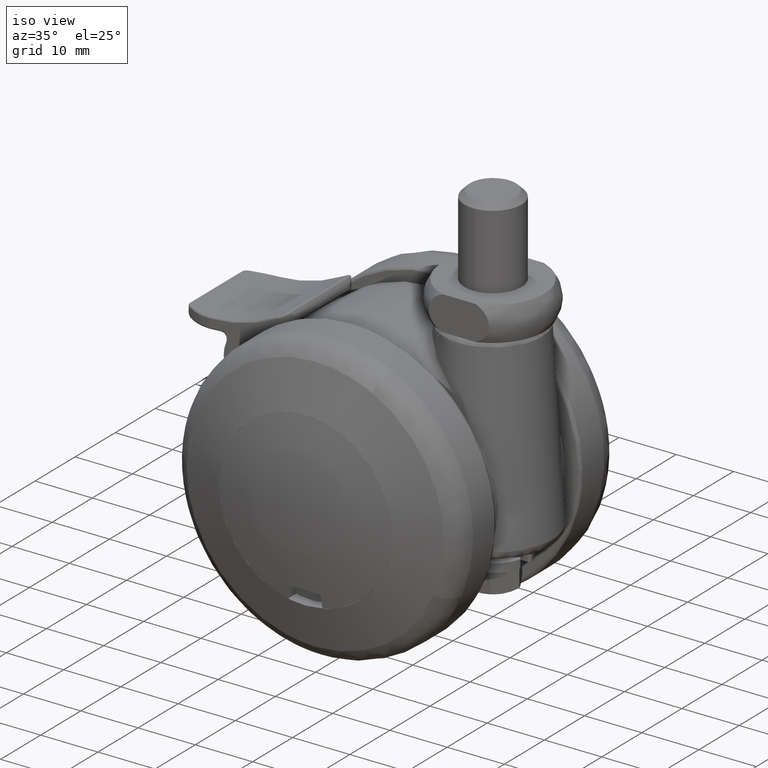
[diagram: clean part render]
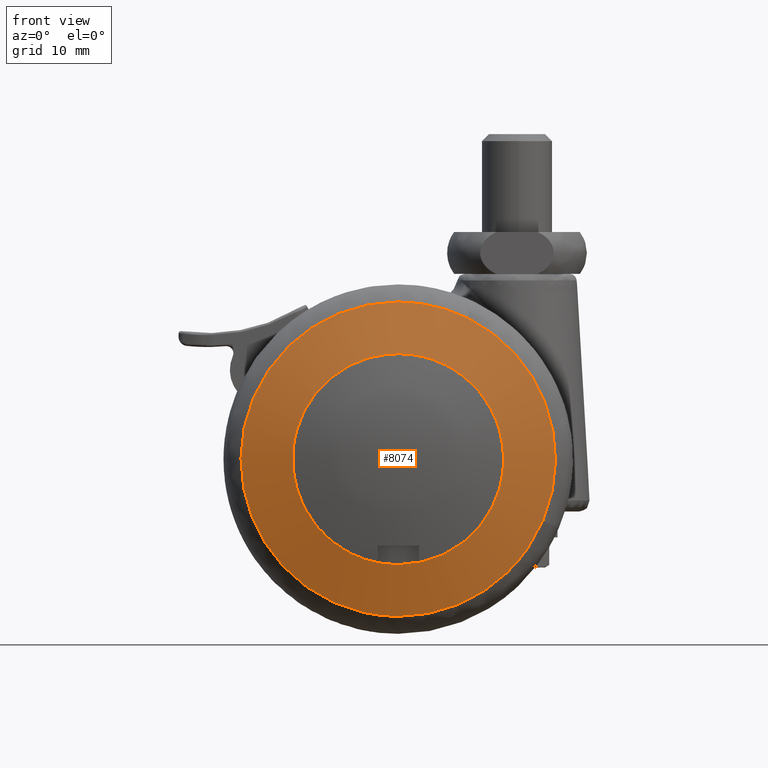
[diagram: tour spotlight — one face highlighted and labeled with its STEP entity id]
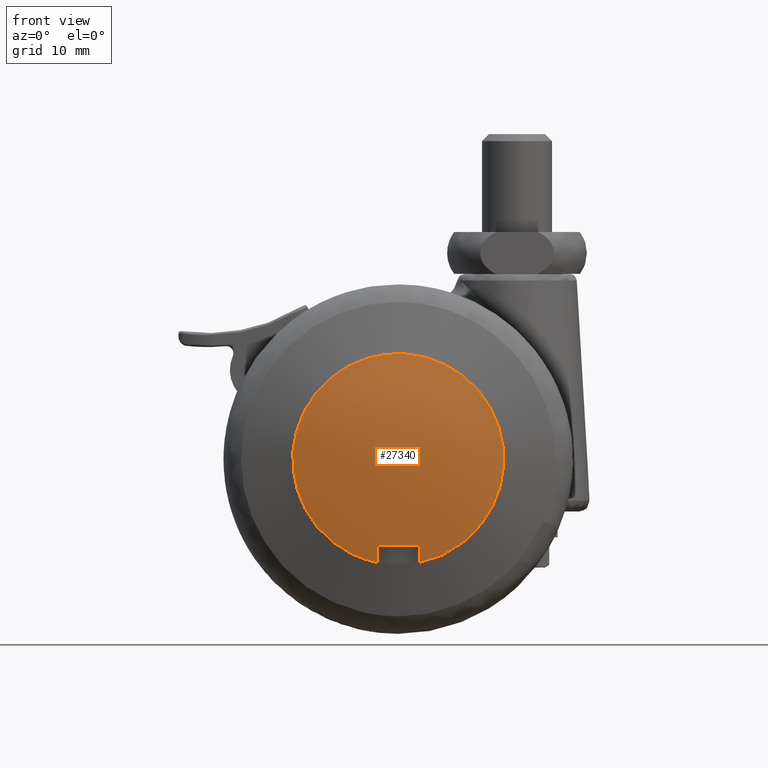
[diagram: tour spotlight — one face highlighted and labeled with its STEP entity id]
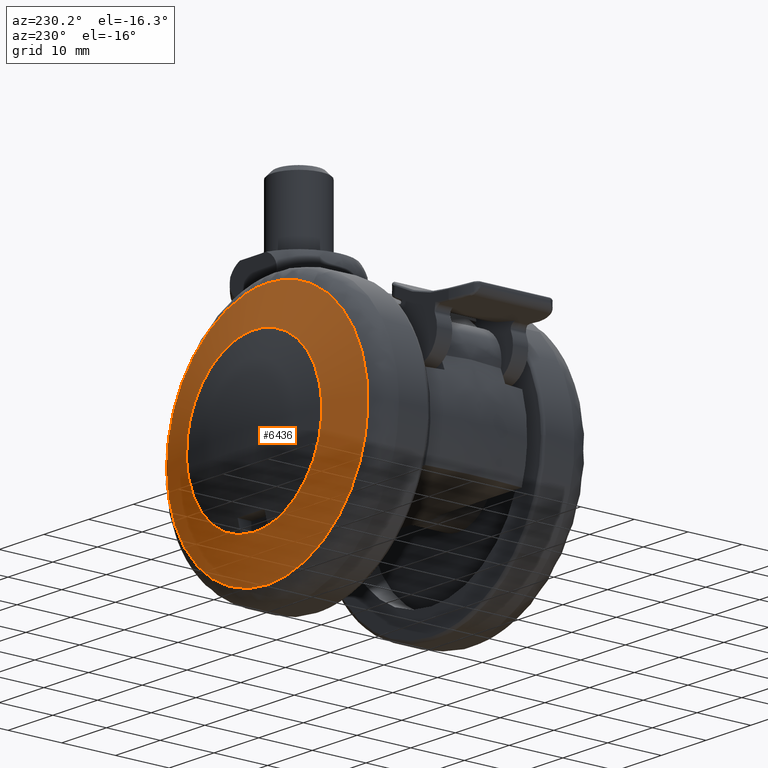
[diagram: tour spotlight — one face highlighted and labeled with its STEP entity id]
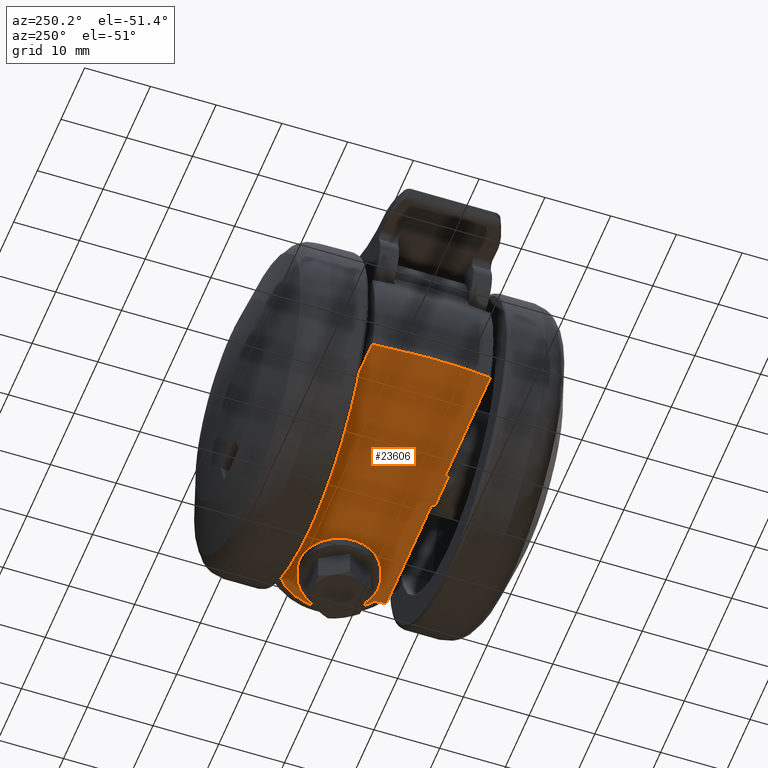
[diagram: tour spotlight — one face highlighted and labeled with its STEP entity id]
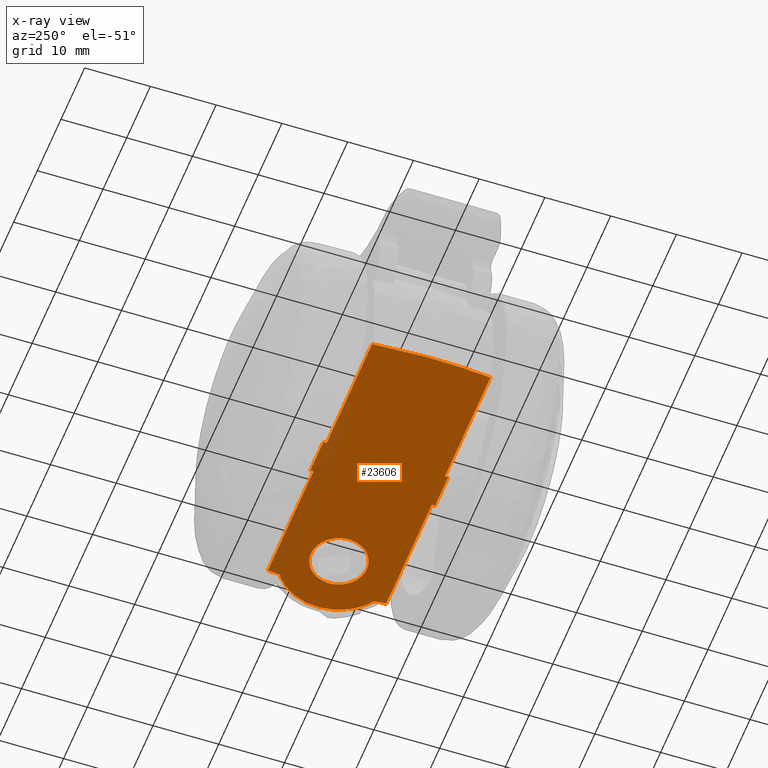
[diagram: x-ray of the same camera — body ghosted, this tour face saturated]
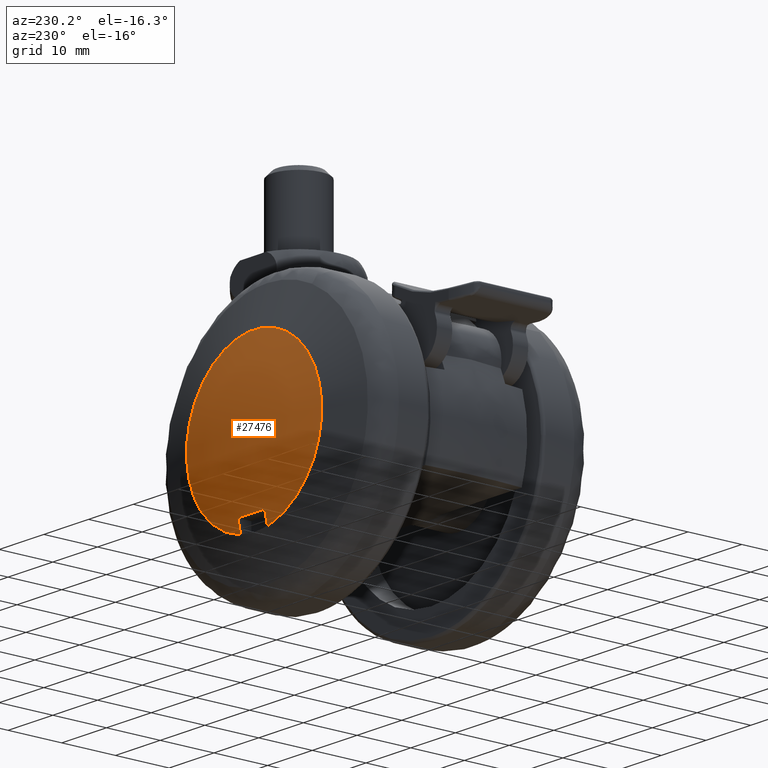
[diagram: tour spotlight — one face highlighted and labeled with its STEP entity id]
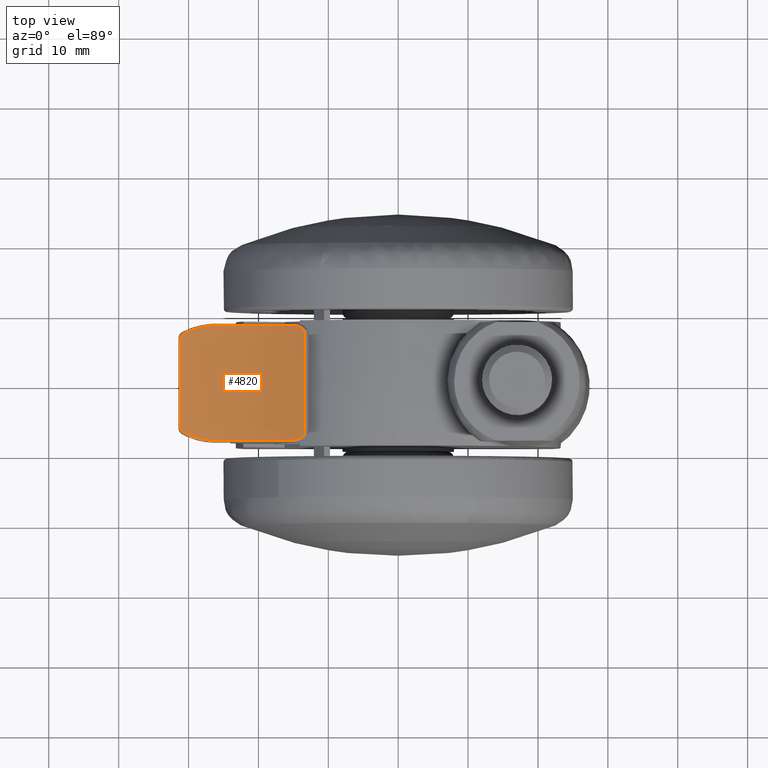
[diagram: tour spotlight — one face highlighted and labeled with its STEP entity id]
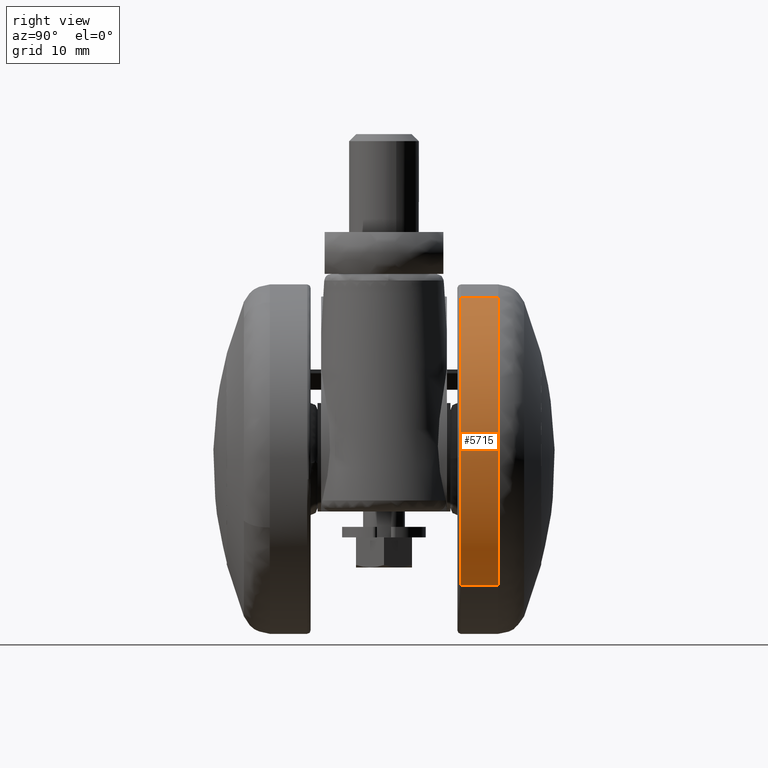
[diagram: tour spotlight — one face highlighted and labeled with its STEP entity id]
A machine part: a face-by-face anatomy tour. The part has 211 B-rep faces; the first image is the clean iso view, then the 7 largest visible faces are spotlighted one at a time (largest first), each with its STEP entity span.

Face 1 — front view, entity #8074. In plain terms, the highlighted face is a freeform B-spline surface patch.
Definition (entity closure, byte-faithful):
#7129=CARTESIAN_POINT('',(14.994447450915599,-22.500000000000000,-1.782297853524828));
#7130=VERTEX_POINT('',#7129);
#7136=CARTESIAN_POINT('',(0.0,-22.500000000000000,15.100001765886200));
#7137=VERTEX_POINT('',#7136);
#7138=CARTESIAN_POINT('',(14.994447450915592,-22.500000000000000,-1.782297853524827));
#7139=CARTESIAN_POINT('',(15.100001765886198,-22.499999999999993,-0.894274586535466));
#7140=CARTESIAN_POINT('',(15.100001765886200,-22.500000000000000,0.0));
#7141=CARTESIAN_POINT('',(15.100001765886196,-22.500000000000004,15.100001765886196));
#7142=CARTESIAN_POINT('',(0.0,-22.500000000000000,15.100001765886200));
#7150=(BOUNDED_CURVE()B_SPLINE_CURVE(2,(#7138,#7139,#7140,#7141,#7142),.UNSPECIFIED.,.F.,.U.)B_SPLINE_CURVE_WITH_KNOTS((3,2,3),(0.229562690439763,0.250000000000000,0.500000000000000),.UNSPECIFIED.)CURVE()GEOMETRIC_REPRESENTATION_ITEM()RATIONAL_B_SPLINE_CURVE((0.956027179368477,0.976056202476061,1.0,0.707106781186547,1.0))REPRESENTATION_ITEM(''));
#7151=EDGE_CURVE('',#7130,#7137,#7150,.T.);
#7153=CARTESIAN_POINT('',(-15.071838267498981,-22.500000000000000,0.921808675963950));
#7154=VERTEX_POINT('',#7153);
#7155=CARTESIAN_POINT('',(0.0,-22.500000000000000,15.100001765886200));
#7156=CARTESIAN_POINT('',(-14.204686265115358,-22.500000000000000,15.100001765886205));
#7157=CARTESIAN_POINT('',(-15.071838267498981,-22.500000000000004,0.921808675963950));
#7165=(BOUNDED_CURVE()B_SPLINE_CURVE(2,(#7155,#7156,#7157),.UNSPECIFIED.,.F.,.U.)B_SPLINE_CURVE_WITH_KNOTS((3,3),(0.500000000000000,0.739333241029301),.UNSPECIFIED.)CURVE()GEOMETRIC_REPRESENTATION_ITEM()RATIONAL_B_SPLINE_CURVE((1.0,0.719603666663489,0.976072639168253))REPRESENTATION_ITEM(''));
#7166=EDGE_CURVE('',#7137,#7154,#7165,.T.);
#7240=CARTESIAN_POINT('',(0.0,-22.500000000000000,-15.100001765886200));
#7241=VERTEX_POINT('',#7240);
#7242=CARTESIAN_POINT('',(-15.071838267498981,-22.500000000000004,0.921808675963950));
#7243=CARTESIAN_POINT('',(-15.100001765886201,-22.500000000000004,0.461334569689428));
#7244=CARTESIAN_POINT('',(-15.100001765886200,-22.500000000000000,0.0));
#7245=CARTESIAN_POINT('',(-15.100001765886196,-22.500000000000004,-15.100001765886196));
#7246=CARTESIAN_POINT('',(0.0,-22.500000000000000,-15.100001765886200));
#7254=(BOUNDED_CURVE()B_SPLINE_CURVE(2,(#7242,#7243,#7244,#7245,#7246),.UNSPECIFIED.,.F.,.U.)B_SPLINE_CURVE_WITH_KNOTS((3,2,3),(0.739333241029301,0.750000000000000,1.0),.UNSPECIFIED.)CURVE()GEOMETRIC_REPRESENTATION_ITEM()RATIONAL_B_SPLINE_CURVE((0.976072639168253,0.987503114523059,1.0,0.707106781186547,1.0))REPRESENTATION_ITEM(''));
#7255=EDGE_CURVE('',#7154,#7241,#7254,.T.);
#7257=CARTESIAN_POINT('',(0.0,-22.500000000000000,-15.100001765886200));
#7258=CARTESIAN_POINT('',(13.411454245719320,-22.499999999999996,-15.100001765886200));
#7259=CARTESIAN_POINT('',(14.994447450915592,-22.500000000000000,-1.782297853524827));
#7267=(BOUNDED_CURVE()B_SPLINE_CURVE(2,(#7257,#7258,#7259),.UNSPECIFIED.,.F.,.U.)B_SPLINE_CURVE_WITH_KNOTS((3,3),(0.0,0.229562690439763),.UNSPECIFIED.)CURVE()GEOMETRIC_REPRESENTATION_ITEM()RATIONAL_B_SPLINE_CURVE((1.0,0.731050578710486,0.956027179368477))REPRESENTATION_ITEM(''));
#7268=EDGE_CURVE('',#7241,#7130,#7267,.T.);
#7709=CARTESIAN_POINT('',(9.975672701062146,-20.052650238824459,20.167695819967630));
#7710=VERTEX_POINT('',#7709);
#7711=CARTESIAN_POINT('',(0.0,-20.052650239280950,22.500000010548298));
#7712=VERTEX_POINT('',#7711);
#7713=CARTESIAN_POINT('',(9.975672701062146,-20.052650238824455,20.167695819967633));
#7714=CARTESIAN_POINT('',(5.260481765086011,-20.052650239280950,22.500000010548298));
#7715=CARTESIAN_POINT('',(0.0,-20.052650239280950,22.500000010548298));
#7723=(BOUNDED_CURVE()B_SPLINE_CURVE(2,(#7713,#7714,#7715),.UNSPECIFIED.,.F.,.U.)B_SPLINE_CURVE_WITH_KNOTS((3,3),(0.424637790835624,0.500000000000000),.UNSPECIFIED.)CURVE()GEOMETRIC_REPRESENTATION_ITEM()RATIONAL_B_SPLINE_CURVE((0.876646594193143,0.911707679923813,1.0))REPRESENTATION_ITEM(''));
#7724=EDGE_CURVE('',#7710,#7712,#7723,.T.);
#7744=CARTESIAN_POINT('',(20.705216575638211,-20.052650239191589,-8.805907508061402));
#7745=VERTEX_POINT('',#7744);
#7759=CARTESIAN_POINT('',(0.0,-20.052650239280950,-22.500000010548298));
#7760=VERTEX_POINT('',#7759);
#7761=CARTESIAN_POINT('',(0.0,-20.052650239280950,-22.500000010548298));
#7762=CARTESIAN_POINT('',(14.881132990308913,-20.052650239280954,-22.500000010548291));
#7763=CARTESIAN_POINT('',(20.705216575638211,-20.052650239191589,-8.805907508061402));
#7771=(BOUNDED_CURVE()B_SPLINE_CURVE(2,(#7761,#7762,#7763),.UNSPECIFIED.,.F.,.U.)B_SPLINE_CURVE_WITH_KNOTS((3,3),(0.0,0.183550134662864),.UNSPECIFIED.)CURVE()GEOMETRIC_REPRESENTATION_ITEM()RATIONAL_B_SPLINE_CURVE((1.0,0.784957640979804,0.885683713610624))REPRESENTATION_ITEM(''));
#7772=EDGE_CURVE('',#7760,#7745,#7771,.T.);
#7774=CARTESIAN_POINT('',(0.0,-20.052650239280950,22.500000010548298));
#7775=CARTESIAN_POINT('',(-22.500000010548291,-20.052650239280958,22.500000010548291));
#7776=CARTESIAN_POINT('',(-22.500000010548298,-20.052650239280950,0.0));
#7777=CARTESIAN_POINT('',(-22.500000010548291,-20.052650239280958,-22.500000010548291));
#7778=CARTESIAN_POINT('',(0.0,-20.052650239280950,-22.500000010548298));
#7786=(BOUNDED_CURVE()B_SPLINE_CURVE(2,(#7774,#7775,#7776,#7777,#7778),.UNSPECIFIED.,.F.,.U.)B_SPLINE_CURVE_WITH_KNOTS((3,2,3),(0.500000000000000,0.750000000000000,1.0),.UNSPECIFIED.)CURVE()GEOMETRIC_REPRESENTATION_ITEM()RATIONAL_B_SPLINE_CURVE((1.0,0.707106781186548,1.0,0.707106781186548,1.0))REPRESENTATION_ITEM(''));
#7787=EDGE_CURVE('',#7712,#7760,#7786,.T.);
#7809=CARTESIAN_POINT('',(20.705216575638211,-20.052650239191589,-8.805907508061402));
#7810=CARTESIAN_POINT('',(22.500000010548298,-20.052650239280947,-4.585856400655935));
#7811=CARTESIAN_POINT('',(22.500000010548298,-20.052650239280950,0.0));
#7812=CARTESIAN_POINT('',(22.500000010548295,-20.052650239280947,13.972709978153336));
#7813=CARTESIAN_POINT('',(9.975672701062145,-20.052650238824452,20.167695819967630));
#7821=(BOUNDED_CURVE()B_SPLINE_CURVE(2,(#7809,#7810,#7811,#7812,#7813),.UNSPECIFIED.,.F.,.U.)B_SPLINE_CURVE_WITH_KNOTS((3,2,3),(0.183550134662864,0.250000000000000,0.424637790835624),.UNSPECIFIED.)CURVE()GEOMETRIC_REPRESENTATION_ITEM()RATIONAL_B_SPLINE_CURVE((0.885683713610624,0.922149140206744,1.0,0.795399101262735,0.876646594193143))REPRESENTATION_ITEM(''));
#7822=EDGE_CURVE('',#7745,#7710,#7821,.T.);
#8038=CARTESIAN_POINT('',(-23.529031152138892,-14.358802987606852,-23.529032246446722));
#8039=CARTESIAN_POINT('',(-12.279879532432092,-19.174364121991974,-24.559760207110013));
#8040=CARTESIAN_POINT('',(12.279867601254047,-19.174364121991953,-24.559760207110013));
#8041=CARTESIAN_POINT('',(23.529010210098853,-14.358811952515833,-23.529034165305625));
#8042=CARTESIAN_POINT('',(-24.559759164940136,-19.174364589546670,-12.279880153592970));
#8043=CARTESIAN_POINT('',(-12.842464883672800,-24.431162000000089,-12.842465480960909));
#8044=CARTESIAN_POINT('',(12.842452405884670,-24.431162000000079,-12.842465480960909));
#8045=CARTESIAN_POINT('',(24.559737393240539,-19.174374357104799,-12.279881198922373));
#8046=CARTESIAN_POINT('',(-24.559759164940136,-19.174364589546670,12.279879656306047));
#8047=CARTESIAN_POINT('',(-12.842464883672800,-24.431162000000089,12.842464960891490));
#8048=CARTESIAN_POINT('',(12.842452405884670,-24.431162000000079,12.842464960891490));
#8049=CARTESIAN_POINT('',(24.559737393240539,-19.174374357104799,12.279880701635408));
#8050=CARTESIAN_POINT('',(-23.529031232116207,-14.358803361260954,23.529031373590627));
#8051=CARTESIAN_POINT('',(-12.279879576001029,-19.174364529100203,24.559759299674045));
#8052=CARTESIAN_POINT('',(12.279867644822941,-19.174364529100181,24.559759299674045));
#8053=CARTESIAN_POINT('',(23.529010290076094,-14.358812326170000,23.529033292449469));
#8061=(BOUNDED_SURFACE()B_SPLINE_SURFACE(2,2,((#8038,#8042,#8046,#8050),(#8039,#8043,#8047,#8051),(#8040,#8044,#8048,#8052),(#8041,#8045,#8049,#8053)),.UNSPECIFIED.,.F.,.F.,.U.)B_SPLINE_SURFACE_WITH_KNOTS((3,1,3),(3,1,3),(9.826574003028870,34.408243677051843,58.989889467430118),(9.826572859764099,34.408243677051850,58.989913498878479),.UNSPECIFIED.)GEOMETRIC_REPRESENTATION_ITEM()RATIONAL_B_SPLINE_SURFACE(((1.091627173310567,1.045813584524547,1.045813584524547,1.091627169600027),(1.045813588786020,1.0,1.0,1.045813585075480),(1.045813588786020,1.0,1.0,1.045813585075480),(1.091627084285301,1.045813495499281,1.045813495499281,1.091627080574761)))REPRESENTATION_ITEM('')SURFACE());
#8062=ORIENTED_EDGE('',*,*,#7772,.T.);
#8063=ORIENTED_EDGE('',*,*,#7822,.T.);
#8064=ORIENTED_EDGE('',*,*,#7724,.T.);
#8065=ORIENTED_EDGE('',*,*,#7787,.T.);
#8066=EDGE_LOOP('',(#8062,#8063,#8064,#8065));
#8067=FACE_OUTER_BOUND('',#8066,.T.);
#8068=ORIENTED_EDGE('',*,*,#7166,.F.);
#8069=ORIENTED_EDGE('',*,*,#7151,.F.);
#8070=ORIENTED_EDGE('',*,*,#7268,.F.);
#8071=ORIENTED_EDGE('',*,*,#7255,.F.);
#8072=EDGE_LOOP('',(#8068,#8069,#8070,#8071));
#8073=FACE_BOUND('',#8072,.T.);
#8074=ADVANCED_FACE('',(#8067,#8073),#8061,.T.);

Face 2 — front view, entity #27340. In plain terms, the highlighted face is a freeform B-spline surface patch.
Definition (entity closure, byte-faithful):
#19263=CARTESIAN_POINT('',(3.0,-23.059141668414401,-12.400000000000000));
#19264=VERTEX_POINT('',#19263);
#19272=CARTESIAN_POINT('',(-3.0,-23.059141668414401,-12.400000000000000));
#19273=VERTEX_POINT('',#19272);
#19274=CARTESIAN_POINT('',(3.000000000000010,-23.059141668414359,-12.400000000000000));
#19275=CARTESIAN_POINT('',(2.168404E-014,-23.212651989781424,-12.399999999999997));
#19276=CARTESIAN_POINT('',(-2.999999999999988,-23.059141668414359,-12.400000000000000));
#19284=(BOUNDED_CURVE()B_SPLINE_CURVE(2,(#19274,#19275,#19276),.UNSPECIFIED.,.F.,.U.)CURVE()GEOMETRIC_REPRESENTATION_ITEM()QUASI_UNIFORM_CURVE()RATIONAL_B_SPLINE_CURVE((1.0,0.998693375438973,1.0))REPRESENTATION_ITEM(''));
#19285=EDGE_CURVE('',#19264,#19273,#19284,.T.);
#19307=CARTESIAN_POINT('',(3.0,-22.500000459189099,-14.798986451781060));
#19308=VERTEX_POINT('',#19307);
#19316=CARTESIAN_POINT('',(3.0,-22.500000459189099,-14.798986451781060));
#19317=CARTESIAN_POINT('',(3.000000000000000,-22.804229559589110,-13.605240478503202));
#19318=CARTESIAN_POINT('',(3.0,-23.059141668414359,-12.400000000000039));
#19326=(BOUNDED_CURVE()B_SPLINE_CURVE(2,(#19316,#19317,#19318),.UNSPECIFIED.,.F.,.U.)CURVE()GEOMETRIC_REPRESENTATION_ITEM()QUASI_UNIFORM_CURVE()RATIONAL_B_SPLINE_CURVE((1.0,0.999788763024764,1.0))REPRESENTATION_ITEM(''));
#19327=EDGE_CURVE('',#19308,#19264,#19326,.T.);
#19344=CARTESIAN_POINT('',(-3.0,-22.500000459189099,-14.798986451781060));
#19345=VERTEX_POINT('',#19344);
#19346=CARTESIAN_POINT('',(-3.0,-23.059141668414380,-12.399999999999970));
#19347=CARTESIAN_POINT('',(-3.000000000000000,-22.804229559589182,-13.605240478502909));
#19348=CARTESIAN_POINT('',(-3.0,-22.500000459189099,-14.798986451781060));
#19356=(BOUNDED_CURVE()B_SPLINE_CURVE(2,(#19346,#19347,#19348),.UNSPECIFIED.,.F.,.U.)CURVE()GEOMETRIC_REPRESENTATION_ITEM()QUASI_UNIFORM_CURVE()RATIONAL_B_SPLINE_CURVE((1.0,0.999788763024764,1.0))REPRESENTATION_ITEM(''));
#19357=EDGE_CURVE('',#19273,#19345,#19356,.T.);
#27287=CARTESIAN_POINT('',(3.0,-22.500000459189099,-14.798986451781060));
#27288=CARTESIAN_POINT('',(16.388397175553621,-22.500000459194354,-12.084936293175325));
#27289=CARTESIAN_POINT('',(15.024558153601300,-22.500000459194350,1.507531853412338));
#27290=CARTESIAN_POINT('',(13.660719131648975,-22.500000459194354,15.100000000000000));
#27291=CARTESIAN_POINT('',(0.0,-22.500000459194350,15.100000000000000));
#27292=CARTESIAN_POINT('',(-13.660719131648975,-22.500000459194354,15.100000000000000));
#27293=CARTESIAN_POINT('',(-15.024558153601300,-22.500000459194350,1.507531853412335));
#27294=CARTESIAN_POINT('',(-16.388397175553621,-22.500000459194354,-12.084936293175321));
#27295=CARTESIAN_POINT('',(-3.0,-22.500000459189099,-14.798986451781060));
#27303=(BOUNDED_CURVE()B_SPLINE_CURVE(2,(#27287,#27288,#27289,#27290,#27291,#27292,#27293,#27294,#27295),.UNSPECIFIED.,.F.,.U.)B_SPLINE_CURVE_WITH_KNOTS((3,2,2,2,3),(0.0,0.250000000000000,0.500000000000000,0.750000000000000,1.0),.UNSPECIFIED.)CURVE()GEOMETRIC_REPRESENTATION_ITEM()RATIONAL_B_SPLINE_CURVE((1.0,0.741564746527098,1.0,0.741564746527098,1.0,0.741564746527098,1.0,0.741564746527098,1.0))REPRESENTATION_ITEM(''));
#27304=EDGE_CURVE('',#19308,#19345,#27303,.T.);
#27310=CARTESIAN_POINT('',(-16.198589917248967,-19.954294156284675,-15.962063784127558));
#27311=CARTESIAN_POINT('',(-8.256086904831921,-22.190363238663451,-16.244219657206948));
#27312=CARTESIAN_POINT('',(8.256087790977423,-22.190363238663451,-16.244219657206948));
#27313=CARTESIAN_POINT('',(16.198591589845218,-19.954293685395211,-15.962063724708893));
#27314=CARTESIAN_POINT('',(-16.554758065455211,-22.290366900299951,-7.474721589583210));
#27315=CARTESIAN_POINT('',(-8.441211474114228,-24.622812310007529,-7.595215988247710));
#27316=CARTESIAN_POINT('',(8.441212380129592,-24.622812310007529,-7.595215988247710));
#27317=CARTESIAN_POINT('',(16.554759773343921,-22.290366409323866,-7.474721564219328));
#27318=CARTESIAN_POINT('',(-16.554758065455211,-21.911531790126006,8.909694483297576));
#27319=CARTESIAN_POINT('',(-8.441211474114228,-24.236478995300811,9.113493423780774));
#27320=CARTESIAN_POINT('',(8.441212380129592,-24.236478995300811,9.113493423780774));
#27321=CARTESIAN_POINT('',(16.554759773343921,-21.911531300728289,8.909694440398219));
#27322=CARTESIAN_POINT('',(-16.289722505968875,-19.858592066390685,16.200152373169551));
#27323=CARTESIAN_POINT('',(-8.303439642709920,-22.105622814339721,16.542568415309677));
#27324=CARTESIAN_POINT('',(8.303440533937904,-22.105622814339721,16.542568415309677));
#27325=CARTESIAN_POINT('',(16.289724187601472,-19.858591593244380,16.200152301068673));
#27333=(BOUNDED_SURFACE()B_SPLINE_SURFACE(2,2,((#27310,#27314,#27318,#27322),(#27311,#27315,#27319,#27323),(#27312,#27316,#27320,#27324),(#27313,#27317,#27321,#27325)),.UNSPECIFIED.,.F.,.F.,.U.)B_SPLINE_SURFACE_WITH_KNOTS((3,1,3),(3,1,3),(14.451984096574780,30.760225851330759,47.068469356489182),(13.402272643756870,30.760225851330748,45.691772995281219),.UNSPECIFIED.)GEOMETRIC_REPRESENTATION_ITEM()RATIONAL_B_SPLINE_SURFACE(((1.042215590028075,1.019792791986311,1.019792791986311,1.036384931790116),(1.022422798041765,1.0,1.0,1.016592139803806),(1.022422798041765,1.0,1.0,1.016592139803806),(1.042215594276891,1.019792796235126,1.019792796235126,1.036384936038931)))REPRESENTATION_ITEM('')SURFACE());
#27334=ORIENTED_EDGE('',*,*,#19357,.F.);
#27335=ORIENTED_EDGE('',*,*,#19285,.F.);
#27336=ORIENTED_EDGE('',*,*,#19327,.F.);
#27337=ORIENTED_EDGE('',*,*,#27304,.T.);
#27338=EDGE_LOOP('',(#27334,#27335,#27336,#27337));
#27339=FACE_OUTER_BOUND('',#27338,.T.);
#27340=ADVANCED_FACE('',(#27339),#27333,.T.);

Face 3 — auxiliary view, entity #6436. In plain terms, the highlighted face is a freeform B-spline surface patch.
Definition (entity closure, byte-faithful):
#5481=CARTESIAN_POINT('',(15.053454933973130,22.500000000000000,-1.184708634050328));
#5482=VERTEX_POINT('',#5481);
#5488=CARTESIAN_POINT('',(0.0,22.500000000000000,-15.100001765886191));
#5489=VERTEX_POINT('',#5488);
#5490=CARTESIAN_POINT('',(0.0,22.500000000000000,-15.100001765886191));
#5491=CARTESIAN_POINT('',(13.958320207464881,22.499999999999993,-15.100001765886198));
#5492=CARTESIAN_POINT('',(15.053454933973137,22.499999999999996,-1.184708634050328));
#5500=(BOUNDED_CURVE()B_SPLINE_CURVE(2,(#5490,#5491,#5492),.UNSPECIFIED.,.F.,.U.)B_SPLINE_CURVE_WITH_KNOTS((3,3),(0.0,0.236331571835349),.UNSPECIFIED.)CURVE()GEOMETRIC_REPRESENTATION_ITEM()RATIONAL_B_SPLINE_CURVE((1.0,0.723120340871607,0.969723922151605))REPRESENTATION_ITEM(''));
#5501=EDGE_CURVE('',#5489,#5482,#5500,.T.);
#5503=CARTESIAN_POINT('',(-15.053454933973130,22.500000000000000,1.184708634050346));
#5504=VERTEX_POINT('',#5503);
#5505=CARTESIAN_POINT('',(-15.053454933973137,22.499999999999996,1.184708634050346));
#5506=CARTESIAN_POINT('',(-15.100001765886198,22.499999999999996,0.593268722263173));
#5507=CARTESIAN_POINT('',(-15.100001765886200,22.500000000000000,8.266093E-015));
#5508=CARTESIAN_POINT('',(-15.100001765886196,22.500000000000004,-15.100001765886196));
#5509=CARTESIAN_POINT('',(0.0,22.500000000000000,-15.100001765886191));
#5517=(BOUNDED_CURVE()B_SPLINE_CURVE(2,(#5505,#5506,#5507,#5508,#5509),.UNSPECIFIED.,.F.,.U.)B_SPLINE_CURVE_WITH_KNOTS((3,2,3),(0.736331571835349,0.750000000000000,1.0),.UNSPECIFIED.)CURVE()GEOMETRIC_REPRESENTATION_ITEM()RATIONAL_B_SPLINE_CURVE((0.969723922151605,0.983986440314940,1.0,0.707106781186547,1.0))REPRESENTATION_ITEM(''));
#5518=EDGE_CURVE('',#5504,#5489,#5517,.T.);
#5598=CARTESIAN_POINT('',(0.0,22.500000000000000,15.100001765886210));
#5599=VERTEX_POINT('',#5598);
#5600=CARTESIAN_POINT('',(0.0,22.500000000000000,15.100001765886210));
#5601=CARTESIAN_POINT('',(-13.958320207464881,22.500000000000007,15.100001765886210));
#5602=CARTESIAN_POINT('',(-15.053454933973137,22.499999999999996,1.184708634050346));
#5610=(BOUNDED_CURVE()B_SPLINE_CURVE(2,(#5600,#5601,#5602),.UNSPECIFIED.,.F.,.U.)B_SPLINE_CURVE_WITH_KNOTS((3,3),(0.500000000000000,0.736331571835349),.UNSPECIFIED.)CURVE()GEOMETRIC_REPRESENTATION_ITEM()RATIONAL_B_SPLINE_CURVE((1.0,0.723120340871607,0.969723922151605))REPRESENTATION_ITEM(''));
#5611=EDGE_CURVE('',#5599,#5504,#5610,.T.);
#5613=CARTESIAN_POINT('',(15.053454933973137,22.499999999999996,-1.184708634050328));
#5614=CARTESIAN_POINT('',(15.100001765886198,22.500000000000007,-0.593268722263156));
#5615=CARTESIAN_POINT('',(15.100001765886200,22.500000000000000,8.266093E-015));
#5616=CARTESIAN_POINT('',(15.100001765886196,22.500000000000004,15.100001765886208));
#5617=CARTESIAN_POINT('',(0.0,22.500000000000000,15.100001765886210));
#5625=(BOUNDED_CURVE()B_SPLINE_CURVE(2,(#5613,#5614,#5615,#5616,#5617),.UNSPECIFIED.,.F.,.U.)B_SPLINE_CURVE_WITH_KNOTS((3,2,3),(0.236331571835349,0.250000000000000,0.500000000000000),.UNSPECIFIED.)CURVE()GEOMETRIC_REPRESENTATION_ITEM()RATIONAL_B_SPLINE_CURVE((0.969723922151605,0.983986440314940,1.0,0.707106781186547,1.0))REPRESENTATION_ITEM(''));
#5626=EDGE_CURVE('',#5482,#5599,#5625,.T.);
#6069=CARTESIAN_POINT('',(0.0,20.052650239280950,22.500000010548309));
#6070=VERTEX_POINT('',#6069);
#6071=CARTESIAN_POINT('',(-9.975672701379754,20.052650238567661,20.167695820518759));
#6072=VERTEX_POINT('',#6071);
#6073=CARTESIAN_POINT('',(0.0,20.052650239280950,22.500000010548309));
#6074=CARTESIAN_POINT('',(-5.260481765128469,20.052650239280947,22.500000010548309));
#6075=CARTESIAN_POINT('',(-9.975672701379754,20.052650238567665,20.167695820518762));
#6083=(BOUNDED_CURVE()B_SPLINE_CURVE(2,(#6073,#6074,#6075),.UNSPECIFIED.,.F.,.U.)B_SPLINE_CURVE_WITH_KNOTS((3,3),(0.500000000000000,0.575362209164931),.UNSPECIFIED.)CURVE()GEOMETRIC_REPRESENTATION_ITEM()RATIONAL_B_SPLINE_CURVE((1.0,0.911707679923163,0.876646594192627))REPRESENTATION_ITEM(''));
#6084=EDGE_CURVE('',#6070,#6072,#6083,.T.);
#6104=CARTESIAN_POINT('',(-20.705216576095939,20.052650238983858,-8.805907508297315));
#6105=VERTEX_POINT('',#6104);
#6119=CARTESIAN_POINT('',(0.0,20.052650239280950,-22.500000010548291));
#6120=VERTEX_POINT('',#6119);
#6121=CARTESIAN_POINT('',(-20.705216576095939,20.052650238983862,-8.805907508297315));
#6122=CARTESIAN_POINT('',(-14.881132990254363,20.052650239280958,-22.500000010548284));
#6123=CARTESIAN_POINT('',(0.0,20.052650239280950,-22.500000010548291));
#6131=(BOUNDED_CURVE()B_SPLINE_CURVE(2,(#6121,#6122,#6123),.UNSPECIFIED.,.F.,.U.)B_SPLINE_CURVE_WITH_KNOTS((3,3),(0.816449865337664,1.0),.UNSPECIFIED.)CURVE()GEOMETRIC_REPRESENTATION_ITEM()RATIONAL_B_SPLINE_CURVE((0.885683713610044,0.784957640980423,1.0))REPRESENTATION_ITEM(''));
#6132=EDGE_CURVE('',#6105,#6120,#6131,.T.);
#6134=CARTESIAN_POINT('',(0.0,20.052650239280950,-22.500000010548291));
#6135=CARTESIAN_POINT('',(22.500000010548291,20.052650239280958,-22.500000010548291));
#6136=CARTESIAN_POINT('',(22.500000010548298,20.052650239280950,7.366981E-015));
#6137=CARTESIAN_POINT('',(22.500000010548291,20.052650239280958,22.500000010548309));
#6138=CARTESIAN_POINT('',(0.0,20.052650239280950,22.500000010548309));
#6146=(BOUNDED_CURVE()B_SPLINE_CURVE(2,(#6134,#6135,#6136,#6137,#6138),.UNSPECIFIED.,.F.,.U.)B_SPLINE_CURVE_WITH_KNOTS((3,2,3),(0.0,0.250000000000000,0.500000000000000),.UNSPECIFIED.)CURVE()GEOMETRIC_REPRESENTATION_ITEM()RATIONAL_B_SPLINE_CURVE((1.0,0.707106781186548,1.0,0.707106781186548,1.0))REPRESENTATION_ITEM(''));
#6147=EDGE_CURVE('',#6120,#6070,#6146,.T.);
#6169=CARTESIAN_POINT('',(-9.975672701379754,20.052650238567665,20.167695820518766));
#6170=CARTESIAN_POINT('',(-22.500000010548298,20.052650239280954,13.972709978097443));
#6171=CARTESIAN_POINT('',(-22.500000010548298,20.052650239280950,7.366981E-015));
#6172=CARTESIAN_POINT('',(-22.500000010548298,20.052650239280954,-4.585856400695446));
#6173=CARTESIAN_POINT('',(-20.705216576095935,20.052650238983855,-8.805907508297317));
#6181=(BOUNDED_CURVE()B_SPLINE_CURVE(2,(#6169,#6170,#6171,#6172,#6173),.UNSPECIFIED.,.F.,.U.)B_SPLINE_CURVE_WITH_KNOTS((3,2,3),(0.575362209164932,0.750000000000000,0.816449865337664),.UNSPECIFIED.)CURVE()GEOMETRIC_REPRESENTATION_ITEM()RATIONAL_B_SPLINE_CURVE((0.876646594192626,0.795399101263386,1.0,0.922149140206125,0.885683713610045))REPRESENTATION_ITEM(''));
#6182=EDGE_CURVE('',#6072,#6105,#6181,.T.);
#6400=CARTESIAN_POINT('',(-23.529010204970035,14.358811954711376,23.529034165775567));
#6401=CARTESIAN_POINT('',(-12.279867598332043,19.174364121991953,24.559760207110013));
#6402=CARTESIAN_POINT('',(12.279879011348388,19.174364121991964,24.559760207110013));
#6403=CARTESIAN_POINT('',(23.529030237513808,14.358803379141486,23.529032330251205));
#6404=CARTESIAN_POINT('',(-24.559737387908541,19.174374359496937,12.279881199178382));
#6405=CARTESIAN_POINT('',(-12.842452402828799,24.431162000000079,12.842465480960909));
#6406=CARTESIAN_POINT('',(12.842464338716370,24.431162000000100,12.842465480960909));
#6407=CARTESIAN_POINT('',(24.559758214080414,19.174365016136321,12.279880199246820));
#6408=CARTESIAN_POINT('',(-24.559737387908541,19.174374359496937,-12.279880701891418));
#6409=CARTESIAN_POINT('',(-12.842452402828799,24.431162000000079,-12.842464960891480));
#6410=CARTESIAN_POINT('',(12.842464338716370,24.431162000000100,-12.842464960891480));
#6411=CARTESIAN_POINT('',(24.559758214080414,19.174365016136321,-12.279879701959896));
#6412=CARTESIAN_POINT('',(-23.529010284947297,14.358812328365572,-23.529033292919422));
#6413=CARTESIAN_POINT('',(-12.279867641900937,19.174364529100192,-24.559759299674052));
#6414=CARTESIAN_POINT('',(12.279879054917322,19.174364529100213,-24.559759299674052));
#6415=CARTESIAN_POINT('',(23.529030317491145,14.358803752795625,-23.529031457395142));
#6423=(BOUNDED_SURFACE()B_SPLINE_SURFACE(2,2,((#6400,#6404,#6408,#6412),(#6401,#6405,#6409,#6413),(#6402,#6406,#6410,#6414),(#6403,#6407,#6411,#6415)),.UNSPECIFIED.,.F.,.F.,.U.)B_SPLINE_SURFACE_WITH_KNOTS((3,1,3),(3,1,3),(9.826597892522813,34.408243677051850,58.989912307977683),(9.826572859764099,34.408243677051850,58.989913498878479),.UNSPECIFIED.)GEOMETRIC_REPRESENTATION_ITEM()RATIONAL_B_SPLINE_SURFACE(((1.091627084263498,1.045813495477478,1.045813495477478,1.091627080552958),(1.045813588786020,1.0,1.0,1.045813585075480),(1.045813588786020,1.0,1.0,1.045813585075480),(1.091627169422466,1.045813580636446,1.045813580636446,1.091627165711925)))REPRESENTATION_ITEM('')SURFACE());
#6424=ORIENTED_EDGE('',*,*,#6147,.F.);
#6425=ORIENTED_EDGE('',*,*,#6132,.F.);
#6426=ORIENTED_EDGE('',*,*,#6182,.F.);
#6427=ORIENTED_EDGE('',*,*,#6084,.F.);
#6428=EDGE_LOOP('',(#6424,#6425,#6426,#6427));
#6429=FACE_OUTER_BOUND('',#6428,.T.);
#6430=ORIENTED_EDGE('',*,*,#5611,.T.);
#6431=ORIENTED_EDGE('',*,*,#5518,.T.);
#6432=ORIENTED_EDGE('',*,*,#5501,.T.);
#6433=ORIENTED_EDGE('',*,*,#5626,.T.);
#6434=EDGE_LOOP('',(#6430,#6431,#6432,#6433));
#6435=FACE_BOUND('',#6434,.T.);
#6436=ADVANCED_FACE('',(#6429,#6435),#6423,.T.);

Face 4 — auxiliary view, entity #23606. An x-ray twin of the same camera follows (body ghosted, this face saturated) — the face is partly hidden behind the body. In plain terms, the highlighted face is a freeform B-spline surface patch.
Definition (entity closure, byte-faithful):
#10468=CARTESIAN_POINT('',(17.259453153174508,4.242073085331858,-7.500000000000000));
#10469=VERTEX_POINT('',#10468);
#10475=CARTESIAN_POINT('',(21.250000000000000,-1.136868E-013,-7.500000000000000));
#10476=VERTEX_POINT('',#10475);
#10477=CARTESIAN_POINT('',(21.250000000000000,-1.136868E-013,-7.500000000000000));
#10478=CARTESIAN_POINT('',(21.249999999999996,3.998003749073949,-7.500000000000002));
#10479=CARTESIAN_POINT('',(17.259453153174508,4.242073085331859,-7.500000000000000));
#10487=(BOUNDED_CURVE()B_SPLINE_CURVE(2,(#10477,#10478,#10479),.UNSPECIFIED.,.F.,.U.)B_SPLINE_CURVE_WITH_KNOTS((3,3),(0.500000000000000,0.739333089955675),.UNSPECIFIED.)CURVE()GEOMETRIC_REPRESENTATION_ITEM()RATIONAL_B_SPLINE_CURVE((1.0,0.719603843657251,0.976072315388140))REPRESENTATION_ITEM(''));
#10488=EDGE_CURVE('',#10476,#10469,#10487,.T.);
#10490=CARTESIAN_POINT('',(16.498354502587251,-4.220290487031250,-7.500000000000002));
#10491=VERTEX_POINT('',#10490);
#10492=CARTESIAN_POINT('',(16.498354502587244,-4.220290487031250,-7.500000000000003));
#10493=CARTESIAN_POINT('',(16.748297491356571,-4.250000000000114,-7.500000000000000));
#10494=CARTESIAN_POINT('',(17.0,-4.250000000000114,-7.500000000000000));
#10495=CARTESIAN_POINT('',(21.250000000000007,-4.250000000000115,-7.500000000000000));
#10496=CARTESIAN_POINT('',(21.250000000000000,-1.136868E-013,-7.500000000000000));
#10504=(BOUNDED_CURVE()B_SPLINE_CURVE(2,(#10492,#10493,#10494,#10495,#10496),.UNSPECIFIED.,.F.,.U.)B_SPLINE_CURVE_WITH_KNOTS((3,2,3),(0.229562473505911,0.250000000000000,0.500000000000000),.UNSPECIFIED.)CURVE()GEOMETRIC_REPRESENTATION_ITEM()RATIONAL_B_SPLINE_CURVE((0.956026754168808,0.976055948322244,1.0,0.707106781186548,1.0))REPRESENTATION_ITEM(''));
#10505=EDGE_CURVE('',#10491,#10476,#10504,.T.);
#10549=CARTESIAN_POINT('',(12.750000000000000,-1.136868E-013,-7.500000000000000));
#10550=VERTEX_POINT('',#10549);
#10551=CARTESIAN_POINT('',(12.750000000000000,-1.136868E-013,-7.500000000000000));
#10552=CARTESIAN_POINT('',(12.750000000000002,-3.774741735074500,-7.500000000000000));
#10553=CARTESIAN_POINT('',(16.498354502587251,-4.220290487031251,-7.500000000000002));
#10561=(BOUNDED_CURVE()B_SPLINE_CURVE(2,(#10551,#10552,#10553),.UNSPECIFIED.,.F.,.U.)B_SPLINE_CURVE_WITH_KNOTS((3,3),(0.0,0.229562473505911),.UNSPECIFIED.)CURVE()GEOMETRIC_REPRESENTATION_ITEM()RATIONAL_B_SPLINE_CURVE((1.0,0.731050832864303,0.956026754168808))REPRESENTATION_ITEM(''));
#10562=EDGE_CURVE('',#10550,#10491,#10561,.T.);
#10564=CARTESIAN_POINT('',(17.259453153174505,4.242073085331858,-7.499999999999999));
#10565=CARTESIAN_POINT('',(17.129847669692861,4.249999999999886,-7.500000000000000));
#10566=CARTESIAN_POINT('',(17.0,4.249999999999886,-7.500000000000000));
#10567=CARTESIAN_POINT('',(12.750000000000002,4.249999999999886,-7.500000000000000));
#10568=CARTESIAN_POINT('',(12.750000000000000,-1.136868E-013,-7.500000000000000));
#10576=(BOUNDED_CURVE()B_SPLINE_CURVE(2,(#10564,#10565,#10566,#10567,#10568),.UNSPECIFIED.,.F.,.U.)B_SPLINE_CURVE_WITH_KNOTS((3,2,3),(0.739333089955675,0.750000000000000,1.0),.UNSPECIFIED.)CURVE()GEOMETRIC_REPRESENTATION_ITEM()RATIONAL_B_SPLINE_CURVE((0.976072315388140,0.987502937529297,1.0,0.707106781186548,1.0))REPRESENTATION_ITEM(''));
#10577=EDGE_CURVE('',#10469,#10550,#10576,.T.);
#23034=CARTESIAN_POINT('',(22.160977493456350,7.262070286592310,-7.500000000000000));
#23035=VERTEX_POINT('',#23034);
#23088=CARTESIAN_POINT('',(22.160977493456301,-7.262070286592670,-7.500000000000000));
#23089=VERTEX_POINT('',#23088);
#23123=CARTESIAN_POINT('',(22.160977493456350,7.262070286592310,-7.500000000000000));
#23124=CARTESIAN_POINT('',(25.909172438300512,4.598318906060981,-7.500000000000001));
#23125=CARTESIAN_POINT('',(25.909172438300509,0.0,-7.500000000000000));
#23126=CARTESIAN_POINT('',(25.909172438300512,-4.598318906061142,-7.500000000000001));
#23127=CARTESIAN_POINT('',(22.160977493456301,-7.262070286592670,-7.500000000000000));
#23135=(BOUNDED_CURVE()B_SPLINE_CURVE(2,(#23123,#23124,#23125,#23126,#23127),.UNSPECIFIED.,.F.,.U.)B_SPLINE_CURVE_WITH_KNOTS((3,2,3),(0.0,0.500000000000000,1.0),.UNSPECIFIED.)CURVE()GEOMETRIC_REPRESENTATION_ITEM()RATIONAL_B_SPLINE_CURVE((1.0,0.888619179097431,1.0,0.888619179097431,1.0))REPRESENTATION_ITEM(''));
#23136=EDGE_CURVE('',#23035,#23089,#23135,.T.);
#23199=CARTESIAN_POINT('',(22.011238817712051,9.0,-7.500000000000000));
#23200=VERTEX_POINT('',#23199);
#23201=CARTESIAN_POINT('',(22.011238817712080,9.000000000000005,-7.500000000000000));
#23202=CARTESIAN_POINT('',(22.066486737791760,8.421296985102257,-7.500000000000000));
#23203=CARTESIAN_POINT('',(22.116399397279000,7.841987054193084,-7.500000000000000));
#23204=CARTESIAN_POINT('',(22.160977493456350,7.262070286592310,-7.500000000000000));
#23205=QUASI_UNIFORM_CURVE('',3,(#23201,#23202,#23203,#23204),.UNSPECIFIED.,.F.,.U.);
#23206=EDGE_CURVE('',#23200,#23035,#23205,.T.);
#23283=CARTESIAN_POINT('',(22.011238817712101,-9.0,-7.500000000000000));
#23284=VERTEX_POINT('',#23283);
#23298=CARTESIAN_POINT('',(22.160977493456301,-7.262070286592660,-7.500000000000000));
#23299=CARTESIAN_POINT('',(22.116344269595508,-7.842704210616157,-7.500000000000000));
#23300=CARTESIAN_POINT('',(22.066418580827438,-8.422010905928207,-7.500000000000000));
#23301=CARTESIAN_POINT('',(22.011238817712080,-8.999999999999998,-7.500000000000000));
#23302=QUASI_UNIFORM_CURVE('',3,(#23298,#23299,#23300,#23301),.UNSPECIFIED.,.F.,.U.);
#23303=EDGE_CURVE('',#23089,#23284,#23302,.T.);
#23332=CARTESIAN_POINT('',(2.783882181415010,9.500000000000000,-7.500000000000000));
#23333=VERTEX_POINT('',#23332);
#23334=CARTESIAN_POINT('',(-2.783882181415010,9.500000000000000,-7.500000000000000));
#23335=VERTEX_POINT('',#23334);
#23355=CARTESIAN_POINT('',(2.783882181415010,9.500000000000000,-7.500000000000000));
#23356=CARTESIAN_POINT('',(-2.783882181415010,9.500000000000000,-7.500000000000000));
#23357=QUASI_UNIFORM_CURVE('',1,(#23355,#23356),.UNSPECIFIED.,.F.,.U.);
#23358=EDGE_CURVE('',#23333,#23335,#23357,.T.);
#23374=CARTESIAN_POINT('',(2.783882181415010,-9.500000000000000,-7.500000000000000));
#23375=VERTEX_POINT('',#23374);
#23376=CARTESIAN_POINT('',(-2.783882181415010,-9.500000000000000,-7.500000000000000));
#23377=VERTEX_POINT('',#23376);
#23397=CARTESIAN_POINT('',(-2.783882181415010,-9.500000000000000,-7.500000000000000));
#23398=CARTESIAN_POINT('',(2.783882181415010,-9.500000000000000,-7.500000000000000));
#23399=QUASI_UNIFORM_CURVE('',1,(#23397,#23398),.UNSPECIFIED.,.F.,.U.);
#23400=EDGE_CURVE('',#23377,#23375,#23399,.T.);
#23437=CARTESIAN_POINT('',(2.783882181415010,-9.0,-7.500000000000000));
#23438=VERTEX_POINT('',#23437);
#23439=CARTESIAN_POINT('',(-2.783882181415010,-9.0,-7.500000000000000));
#23440=VERTEX_POINT('',#23439);
#23460=CARTESIAN_POINT('',(-2.783882181415010,-9.0,-7.500000000000000));
#23461=CARTESIAN_POINT('',(-2.783882181415010,-9.500000000000000,-7.500000000000000));
#23462=QUASI_UNIFORM_CURVE('',1,(#23460,#23461),.UNSPECIFIED.,.F.,.U.);
#23463=EDGE_CURVE('',#23440,#23377,#23462,.T.);
#23466=CARTESIAN_POINT('',(2.783882181415010,-9.500000000000000,-7.500000000000000));
#23467=CARTESIAN_POINT('',(2.783882181415010,-9.0,-7.500000000000000));
#23468=QUASI_UNIFORM_CURVE('',1,(#23466,#23467),.UNSPECIFIED.,.F.,.U.);
#23469=EDGE_CURVE('',#23375,#23438,#23468,.T.);
#23501=CARTESIAN_POINT('',(-2.783882181415010,9.0,-7.500000000000000));
#23502=VERTEX_POINT('',#23501);
#23503=CARTESIAN_POINT('',(-2.783882181415010,9.500000000000000,-7.500000000000000));
#23504=CARTESIAN_POINT('',(-2.783882181415010,9.0,-7.500000000000000));
#23505=QUASI_UNIFORM_CURVE('',1,(#23503,#23504),.UNSPECIFIED.,.F.,.U.);
#23506=EDGE_CURVE('',#23335,#23502,#23505,.T.);
#23508=CARTESIAN_POINT('',(2.783882181415010,9.0,-7.500000000000000));
#23509=VERTEX_POINT('',#23508);
#23529=CARTESIAN_POINT('',(2.783882181415010,9.0,-7.500000000000000));
#23530=CARTESIAN_POINT('',(2.783882181415010,9.500000000000000,-7.500000000000000));
#23531=QUASI_UNIFORM_CURVE('',1,(#23529,#23530),.UNSPECIFIED.,.F.,.U.);
#23532=EDGE_CURVE('',#23509,#23333,#23531,.T.);
#23537=CARTESIAN_POINT('',(-24.854566945339229,-10.449049963174311,-7.500000000000000));
#23538=CARTESIAN_POINT('',(28.324192248856420,-10.449049963174311,-7.500000000000000));
#23539=CARTESIAN_POINT('',(-24.854566945339229,10.449050472794029,-7.500000000000000));
#23540=CARTESIAN_POINT('',(28.324192248856420,10.449050472794029,-7.500000000000000));
#23541=B_SPLINE_SURFACE_WITH_KNOTS('',1,1,((#23537,#23539),(#23538,#23540)),.UNSPECIFIED.,.F.,.F.,.U.,(2,2),(2,2),(0.0,53.178759194195649),(0.0,20.898100435968342),.UNSPECIFIED.);
#23542=ORIENTED_EDGE('',*,*,#23136,.T.);
#23543=ORIENTED_EDGE('',*,*,#23303,.T.);
#23544=CARTESIAN_POINT('',(2.783882181415010,-9.0,-7.500000000000000));
#23545=CARTESIAN_POINT('',(22.011238817712101,-9.0,-7.500000000000000));
#23546=QUASI_UNIFORM_CURVE('',1,(#23544,#23545),.UNSPECIFIED.,.F.,.U.);
#23547=EDGE_CURVE('',#23438,#23284,#23546,.T.);
#23548=ORIENTED_EDGE('',*,*,#23547,.F.);
#23549=ORIENTED_EDGE('',*,*,#23469,.F.);
#23550=ORIENTED_EDGE('',*,*,#23400,.F.);
#23551=ORIENTED_EDGE('',*,*,#23463,.F.);
#23552=CARTESIAN_POINT('',(-22.011238817712051,-9.0,-7.500000000000000));
#23553=VERTEX_POINT('',#23552);
#23554=CARTESIAN_POINT('',(-22.011238817712051,-9.0,-7.500000000000000));
#23555=CARTESIAN_POINT('',(-2.783882181415010,-9.0,-7.500000000000000));
#23556=QUASI_UNIFORM_CURVE('',1,(#23554,#23555),.UNSPECIFIED.,.F.,.U.);
#23557=EDGE_CURVE('',#23553,#23440,#23556,.T.);
#23558=ORIENTED_EDGE('',*,*,#23557,.F.);
#23559=CARTESIAN_POINT('',(-22.011238250835749,9.0,-7.500000000000000));
#23560=VERTEX_POINT('',#23559);
#23561=CARTESIAN_POINT('',(-22.011238250835749,9.0,-7.500000000000000));
#23562=CARTESIAN_POINT('',(-22.082077541865960,8.257988669716676,-7.500000000000003));
#23563=CARTESIAN_POINT('',(-22.144233624057140,7.514058427782786,-7.499999999999998));
#23564=CARTESIAN_POINT('',(-22.224344972267250,6.395263048718626,-7.500000000000002));
#23565=CARTESIAN_POINT('',(-22.248861295732681,6.021847846722679,-7.500000000000002));
#23566=CARTESIAN_POINT('',(-22.293498568876728,5.274046104355233,-7.500000000000002));
#23567=CARTESIAN_POINT('',(-22.313617899981288,4.899648211437655,-7.500000000000002));
#23568=CARTESIAN_POINT('',(-22.403054234901369,3.028056123647811,-7.500000000000000));
#23569=CARTESIAN_POINT('',(-22.439059763347899,1.529795985727503,-7.500000000000001));
#23570=CARTESIAN_POINT('',(-22.439557779502440,-0.016301477101143,-7.499999999999999));
#23571=CARTESIAN_POINT('',(-22.439537921908009,-0.063911822978105,-7.500000000000000));
#23572=CARTESIAN_POINT('',(-22.439426639722502,-0.158724032317720,-7.500000000000000));
#23573=CARTESIAN_POINT('',(-22.439153107964430,-0.300924208065515,-7.500000000000001));
#23574=CARTESIAN_POINT('',(-22.437769170078351,-0.632597745971680,-7.500000000000000));
#23575=CARTESIAN_POINT('',(-22.432022908271239,-1.295438082121553,-7.500000000000000));
#23576=CARTESIAN_POINT('',(-22.408650620404082,-2.619097543048100,-7.500000000000000));
#23577=CARTESIAN_POINT('',(-22.368362453462360,-3.750216667431049,-7.499999999999999));
#23578=CARTESIAN_POINT('',(-22.261015532072982,-6.007900194841947,-7.500000000000000));
#23579=CARTESIAN_POINT('',(-22.153777789536619,-7.506953155587995,-7.499999999999999));
#23580=CARTESIAN_POINT('',(-22.011238817712080,-8.999999999999998,-7.500000000000000));
#23581=B_SPLINE_CURVE_WITH_KNOTS('',3,(#23561,#23562,#23563,#23564,#23565,#23566,#23567,#23568,#23569,#23570,#23571,#23572,#23573,#23574,#23575,#23576,#23577,#23578,#23579,#23580),.UNSPECIFIED.,.F.,.U.,(4,2,2,2,2,2,1,1,1,1,2,4),(0.0,0.125000000000000,0.187500000000000,0.250000000000000,0.500000000000000,0.507812500000000,0.515625000000000,0.531250000000000,0.562500000000000,0.625000000000000,0.750000000000000,1.0),.UNSPECIFIED.);
#23582=EDGE_CURVE('',#23560,#23553,#23581,.T.);
#23583=ORIENTED_EDGE('',*,*,#23582,.F.);
#23584=CARTESIAN_POINT('',(-2.783882181415010,9.0,-7.500000000000000));
#23585=CARTESIAN_POINT('',(-22.011238250835749,9.0,-7.500000000000000));
#23586=QUASI_UNIFORM_CURVE('',1,(#23584,#23585),.UNSPECIFIED.,.F.,.U.);
#23587=EDGE_CURVE('',#23502,#23560,#23586,.T.);
#23588=ORIENTED_EDGE('',*,*,#23587,.F.);
#23589=ORIENTED_EDGE('',*,*,#23506,.F.);
#23590=ORIENTED_EDGE('',*,*,#23358,.F.);
#23591=ORIENTED_EDGE('',*,*,#23532,.F.);
#23592=CARTESIAN_POINT('',(2.783882181415010,9.0,-7.500000000000000));
#23593=CARTESIAN_POINT('',(22.011238817712051,9.0,-7.500000000000000));
#23594=QUASI_UNIFORM_CURVE('',1,(#23592,#23593),.UNSPECIFIED.,.F.,.U.);
#23595=EDGE_CURVE('',#23509,#23200,#23594,.T.);
#23596=ORIENTED_EDGE('',*,*,#23595,.T.);
#23597=ORIENTED_EDGE('',*,*,#23206,.T.);
#23598=EDGE_LOOP('',(#23542,#23543,#23548,#23549,#23550,#23551,#23558,#23583,#23588,#23589,#23590,#23591,#23596,#23597));
#23599=FACE_OUTER_BOUND('',#23598,.T.);
#23600=ORIENTED_EDGE('',*,*,#10488,.T.);
#23601=ORIENTED_EDGE('',*,*,#10577,.T.);
#23602=ORIENTED_EDGE('',*,*,#10562,.T.);
#23603=ORIENTED_EDGE('',*,*,#10505,.T.);
#23604=EDGE_LOOP('',(#23600,#23601,#23602,#23603));
#23605=FACE_BOUND('',#23604,.T.);
#23606=ADVANCED_FACE('',(#23599,#23605),#23541,.F.);

Face 5 — auxiliary view, entity #27476. In plain terms, the highlighted face is a freeform B-spline surface patch.
Definition (entity closure, byte-faithful):
#19147=CARTESIAN_POINT('',(3.0,23.059141668414401,-12.400000000000000));
#19148=VERTEX_POINT('',#19147);
#19149=CARTESIAN_POINT('',(3.0,22.500000459189099,-14.798986451781060));
#19150=VERTEX_POINT('',#19149);
#19151=CARTESIAN_POINT('',(3.0,23.059141668414370,-12.400000000000000));
#19152=CARTESIAN_POINT('',(3.000000000000000,22.804229559589150,-13.605240478503049));
#19153=CARTESIAN_POINT('',(3.0,22.500000459189099,-14.798986451781060));
#19161=(BOUNDED_CURVE()B_SPLINE_CURVE(2,(#19151,#19152,#19153),.UNSPECIFIED.,.F.,.U.)CURVE()GEOMETRIC_REPRESENTATION_ITEM()QUASI_UNIFORM_CURVE()RATIONAL_B_SPLINE_CURVE((1.0,0.999788763024764,1.0))REPRESENTATION_ITEM(''));
#19162=EDGE_CURVE('',#19148,#19150,#19161,.T.);
#19191=CARTESIAN_POINT('',(-3.0,22.500000459189099,-14.798986451781060));
#19192=VERTEX_POINT('',#19191);
#19193=CARTESIAN_POINT('',(-3.0,23.059141668414401,-12.400000000000000));
#19194=VERTEX_POINT('',#19193);
#19195=CARTESIAN_POINT('',(-3.0,22.500000459189099,-14.798986451781060));
#19196=CARTESIAN_POINT('',(-3.000000000000000,22.804229559589150,-13.605240478503040));
#19197=CARTESIAN_POINT('',(-3.0,23.059141668414370,-12.399999999999990));
#19205=(BOUNDED_CURVE()B_SPLINE_CURVE(2,(#19195,#19196,#19197),.UNSPECIFIED.,.F.,.U.)CURVE()GEOMETRIC_REPRESENTATION_ITEM()QUASI_UNIFORM_CURVE()RATIONAL_B_SPLINE_CURVE((1.0,0.999788763024764,1.0))REPRESENTATION_ITEM(''));
#19206=EDGE_CURVE('',#19192,#19194,#19205,.T.);
#19235=CARTESIAN_POINT('',(-3.000000000000002,23.059141668414359,-12.400000000000000));
#19236=CARTESIAN_POINT('',(-6.938894E-015,23.212651989781424,-12.399999999999997));
#19237=CARTESIAN_POINT('',(2.999999999999995,23.059141668414359,-12.400000000000000));
#19245=(BOUNDED_CURVE()B_SPLINE_CURVE(2,(#19235,#19236,#19237),.UNSPECIFIED.,.F.,.U.)CURVE()GEOMETRIC_REPRESENTATION_ITEM()QUASI_UNIFORM_CURVE()RATIONAL_B_SPLINE_CURVE((1.0,0.998693375438973,1.0))REPRESENTATION_ITEM(''));
#19246=EDGE_CURVE('',#19194,#19148,#19245,.T.);
#27421=CARTESIAN_POINT('',(3.0,22.500000459189099,-14.798986451781060));
#27422=CARTESIAN_POINT('',(16.388397175553621,22.500000459194354,-12.084936293175325));
#27423=CARTESIAN_POINT('',(15.024558153601300,22.500000459194350,1.507531853412338));
#27424=CARTESIAN_POINT('',(13.660719131648975,22.500000459194354,15.100000000000000));
#27425=CARTESIAN_POINT('',(0.0,22.500000459194350,15.100000000000000));
#27426=CARTESIAN_POINT('',(-13.660719131648975,22.500000459194354,15.100000000000000));
#27427=CARTESIAN_POINT('',(-15.024558153601300,22.500000459194350,1.507531853412335));
#27428=CARTESIAN_POINT('',(-16.388397175553621,22.500000459194354,-12.084936293175321));
#27429=CARTESIAN_POINT('',(-3.0,22.500000459189099,-14.798986451781060));
#27437=(BOUNDED_CURVE()B_SPLINE_CURVE(2,(#27421,#27422,#27423,#27424,#27425,#27426,#27427,#27428,#27429),.UNSPECIFIED.,.F.,.U.)B_SPLINE_CURVE_WITH_KNOTS((3,2,2,2,3),(0.0,0.250000000000000,0.500000000000000,0.750000000000000,1.0),.UNSPECIFIED.)CURVE()GEOMETRIC_REPRESENTATION_ITEM()RATIONAL_B_SPLINE_CURVE((1.0,0.741564746527098,1.0,0.741564746527098,1.0,0.741564746527098,1.0,0.741564746527098,1.0))REPRESENTATION_ITEM(''));
#27438=EDGE_CURVE('',#19150,#19192,#27437,.T.);
#27446=CARTESIAN_POINT('',(-16.289722093027613,19.858592791065512,16.200150308981161));
#27447=CARTESIAN_POINT('',(-8.303439543197886,22.105623388859716,16.542566289245364));
#27448=CARTESIAN_POINT('',(8.303440201409824,22.105623458978172,16.542566290866624));
#27449=CARTESIAN_POINT('',(16.289723788830507,19.858592318907696,16.200150219249480));
#27450=CARTESIAN_POINT('',(-16.554757559267614,21.911531905309332,8.909693584182133));
#27451=CARTESIAN_POINT('',(-8.441211329781213,24.236478929125010,9.113492496467394));
#27452=CARTESIAN_POINT('',(8.441211990505298,24.236479000406881,9.113492498115548));
#27453=CARTESIAN_POINT('',(16.554759272992676,21.911531414447381,8.909693532132536));
#27454=CARTESIAN_POINT('',(-16.554757559267614,22.290367101881500,-7.474721460318575));
#27455=CARTESIAN_POINT('',(-8.441211329781213,24.622812331233419,-7.595215836266160));
#27456=CARTESIAN_POINT('',(8.441211990505298,24.622812402515290,-7.595215834618005));
#27457=CARTESIAN_POINT('',(16.554759272992676,22.290366608985607,-7.474721424401266));
#27458=CARTESIAN_POINT('',(-16.198589396328085,19.954294273762407,-15.962063904127854));
#27459=CARTESIAN_POINT('',(-8.256086747957863,22.190363179625724,-16.244219743983663));
#27460=CARTESIAN_POINT('',(8.256087405306358,22.190363249344308,-16.244219742371648));
#27461=CARTESIAN_POINT('',(16.198591085957922,19.954293803743337,-15.962063824395651));
#27469=(BOUNDED_SURFACE()B_SPLINE_SURFACE(2,2,((#27446,#27450,#27454,#27458),(#27447,#27451,#27455,#27459),(#27448,#27452,#27456,#27460),(#27449,#27453,#27457,#27461)),.UNSPECIFIED.,.F.,.F.,.U.)B_SPLINE_SURFACE_WITH_KNOTS((3,1,3),(3,1,3),(14.451985097885130,30.760226075547571,47.068469308853153),(15.828681506729129,30.760226075547578,48.118179760360718),.UNSPECIFIED.)GEOMETRIC_REPRESENTATION_ITEM()RATIONAL_B_SPLINE_SURFACE(((1.036384924219519,1.019792790121103,1.019792790121103,1.042215589419710),(1.016592134098416,1.0,1.0,1.022422799298607),(1.016592134098416,1.0,1.0,1.022422799298607),(1.036384929694724,1.019792795596307,1.019792795596307,1.042215594894914)))REPRESENTATION_ITEM('')SURFACE());
#27470=ORIENTED_EDGE('',*,*,#19206,.F.);
#27471=ORIENTED_EDGE('',*,*,#27438,.F.);
#27472=ORIENTED_EDGE('',*,*,#19162,.F.);
#27473=ORIENTED_EDGE('',*,*,#19246,.F.);
#27474=EDGE_LOOP('',(#27470,#27471,#27472,#27473));
#27475=FACE_OUTER_BOUND('',#27474,.T.);
#27476=ADVANCED_FACE('',(#27475),#27469,.T.);

Face 6 — top view, entity #4820. In plain terms, the highlighted face is a freeform B-spline surface patch.
Definition (entity closure, byte-faithful):
#2670=CARTESIAN_POINT('',(-31.077655022131150,-6.573563892595920,18.320059060714851));
#2671=VERTEX_POINT('',#2670);
#2734=CARTESIAN_POINT('',(-30.723968631467400,-7.053820987953370,18.270335464148999));
#2735=VERTEX_POINT('',#2734);
#2751=CARTESIAN_POINT('',(-31.077655022131150,-6.573563892595920,18.320059060714851));
#2752=CARTESIAN_POINT('',(-31.067538835488271,-6.624503729509164,18.318565932591252));
#2753=CARTESIAN_POINT('',(-31.051923874347992,-6.673906349572571,18.316265670505491));
#2754=CARTESIAN_POINT('',(-31.010112036584310,-6.768572543405041,18.310171762588329));
#2755=CARTESIAN_POINT('',(-30.984426629207000,-6.812780884306596,18.306453049977719));
#2756=CARTESIAN_POINT('',(-30.923763784852859,-6.895130589547740,18.297796787138690));
#2757=CARTESIAN_POINT('',(-30.888371479657490,-6.933482863923143,18.292802715482249));
#2758=CARTESIAN_POINT('',(-30.811329578320439,-7.000357811528049,18.282127350738708));
#2759=CARTESIAN_POINT('',(-30.769418485461401,-7.029386306869593,18.276407063445490));
#2760=CARTESIAN_POINT('',(-30.723968631467400,-7.053820987953370,18.270335464148999));
#2761=B_SPLINE_CURVE_WITH_KNOTS('',3,(#2751,#2752,#2753,#2754,#2755,#2756,#2757,#2758,#2759,#2760),.UNSPECIFIED.,.F.,.U.,(4,2,2,2,4),(0.0,0.250000000000000,0.500000000000000,0.750000000000000,1.0),.UNSPECIFIED.);
#2762=EDGE_CURVE('',#2671,#2735,#2761,.T.);
#2799=CARTESIAN_POINT('',(-31.077655022131150,6.573563892595931,18.320059060714851));
#2800=VERTEX_POINT('',#2799);
#2824=CARTESIAN_POINT('',(-31.077655022131150,6.573563892595931,18.320059060714851));
#2825=CARTESIAN_POINT('',(-31.077655022131150,-6.573563892595920,18.320059060714851));
#2826=QUASI_UNIFORM_CURVE('',1,(#2824,#2825),.UNSPECIFIED.,.F.,.U.);
#2827=EDGE_CURVE('',#2800,#2671,#2826,.T.);
#2926=CARTESIAN_POINT('',(-26.677259394255849,-8.199999999999871,18.048413165206249));
#2927=VERTEX_POINT('',#2926);
#2949=CARTESIAN_POINT('',(-30.723968631467400,-7.053820987953370,18.270335464148999));
#2950=CARTESIAN_POINT('',(-30.412069551654241,-7.221503694845366,18.228669186545090));
#2951=CARTESIAN_POINT('',(-30.093532142100450,-7.371005081768878,18.191877721562172));
#2952=CARTESIAN_POINT('',(-29.443412941106271,-7.634616492824928,18.129398939413559));
#2953=CARTESIAN_POINT('',(-29.111830648447569,-7.748724312786672,18.103708206482938));
#2954=CARTESIAN_POINT('',(-28.435405877567710,-7.941227470665455,18.064817845857458));
#2955=CARTESIAN_POINT('',(-28.090375160195361,-8.019660413703807,18.051611120032430));
#2956=CARTESIAN_POINT('',(-27.387145135133672,-8.139041352140065,18.039234487954229));
#2957=CARTESIAN_POINT('',(-27.033312024032679,-8.179263757975310,18.040139835436818));
#2958=CARTESIAN_POINT('',(-26.677259394255849,-8.199999999999879,18.048413165206249));
#2959=B_SPLINE_CURVE_WITH_KNOTS('',3,(#2949,#2950,#2951,#2952,#2953,#2954,#2955,#2956,#2957,#2958),.UNSPECIFIED.,.F.,.U.,(4,2,2,2,4),(0.0,0.250000000000000,0.500000000000000,0.750000000000000,1.0),.UNSPECIFIED.);
#2960=EDGE_CURVE('',#2735,#2927,#2959,.T.);
#3058=CARTESIAN_POINT('',(-14.877997156640140,-8.199999999999871,21.190585378196801));
#3059=VERTEX_POINT('',#3058);
#3073=CARTESIAN_POINT('',(-26.677259394255859,-8.199999999999871,18.048413165206220));
#3074=CARTESIAN_POINT('',(-20.398098863470072,-8.199999999999871,18.194317341729061));
#3075=CARTESIAN_POINT('',(-14.877997156640150,-8.199999999999871,21.190585378196790));
#3083=(BOUNDED_CURVE()B_SPLINE_CURVE(2,(#3073,#3074,#3075),.UNSPECIFIED.,.F.,.U.)CURVE()GEOMETRIC_REPRESENTATION_ITEM()QUASI_UNIFORM_CURVE()RATIONAL_B_SPLINE_CURVE((1.0,0.972039612133256,1.0))REPRESENTATION_ITEM(''));
#3084=EDGE_CURVE('',#2927,#3059,#3083,.T.);
#3136=CARTESIAN_POINT('',(-30.723968631467400,7.053820987953380,18.270335464148999));
#3137=VERTEX_POINT('',#3136);
#3173=CARTESIAN_POINT('',(-30.723968631467400,7.053820987953380,18.270335464148999));
#3174=CARTESIAN_POINT('',(-30.769417220703019,7.029386986827068,18.276406894487721));
#3175=CARTESIAN_POINT('',(-30.811788869445820,7.000065120682158,18.282189741140911));
#3176=CARTESIAN_POINT('',(-30.889556263601790,6.932346179501812,18.292968164230299));
#3177=CARTESIAN_POINT('',(-30.924089801270771,6.894752443697344,18.297842935809332));
#3178=CARTESIAN_POINT('',(-30.984723076635881,6.812313372150585,18.306495727402680));
#3179=CARTESIAN_POINT('',(-31.010875356251429,6.767046337702799,18.310282643048492));
#3180=CARTESIAN_POINT('',(-31.052076493057019,6.673354245592019,18.316288292720571));
#3181=CARTESIAN_POINT('',(-31.067538960519979,6.624503099914679,18.318565951045660));
#3182=CARTESIAN_POINT('',(-31.077655022131150,6.573563892595931,18.320059060714851));
#3183=B_SPLINE_CURVE_WITH_KNOTS('',3,(#3173,#3174,#3175,#3176,#3177,#3178,#3179,#3180,#3181,#3182),.UNSPECIFIED.,.F.,.U.,(4,2,2,2,4),(0.0,0.250000000000000,0.500000000000000,0.750000000000000,1.0),.UNSPECIFIED.);
#3184=EDGE_CURVE('',#3137,#2800,#3183,.T.);
#3289=CARTESIAN_POINT('',(-13.477185757847060,-7.439245954175421,22.008509897129951));
#3290=VERTEX_POINT('',#3289);
#3306=CARTESIAN_POINT('',(-14.877997156640140,-8.199999999999889,21.190585378196801));
#3307=CARTESIAN_POINT('',(-14.741355768226111,-8.199999999999891,21.264753255222871));
#3308=CARTESIAN_POINT('',(-14.607377296145110,-8.183393044070799,21.339061558647291));
#3309=CARTESIAN_POINT('',(-14.410235750097060,-8.134260581673306,21.450625065733799));
#3310=CARTESIAN_POINT('',(-14.344899318136321,-8.113668853179005,21.487982905902310));
#3311=CARTESIAN_POINT('',(-14.217953864451470,-8.064911448240983,21.561273487622191));
#3312=CARTESIAN_POINT('',(-14.156107012750541,-8.036722850609371,21.597337790611789));
#3313=CARTESIAN_POINT('',(-14.035648819590730,-7.972656923789114,21.668216085121401));
#3314=CARTESIAN_POINT('',(-13.977036760183070,-7.936781752974071,21.703030752003549));
#3315=CARTESIAN_POINT('',(-13.891643631245721,-7.876863735469149,21.754184594049921));
#3316=CARTESIAN_POINT('',(-13.863539687561760,-7.855815321879606,21.771094623656211));
#3317=CARTESIAN_POINT('',(-13.808794024985890,-7.812065624650551,21.804170348099209));
#3318=CARTESIAN_POINT('',(-13.782092225414480,-7.789328309182586,21.820371703351249));
#3319=CARTESIAN_POINT('',(-13.704004833206740,-7.718505164320815,21.867934756037389));
#3320=CARTESIAN_POINT('',(-13.654627899464300,-7.667820718708923,21.898261070833058));
#3321=CARTESIAN_POINT('',(-13.561472320041609,-7.559107313692052,21.955858720159270));
#3322=CARTESIAN_POINT('',(-13.517541580292290,-7.500830442535533,21.983226151106830));
#3323=CARTESIAN_POINT('',(-13.477185757847060,-7.439245954175421,22.008509897129951));
#3324=B_SPLINE_CURVE_WITH_KNOTS('',3,(#3306,#3307,#3308,#3309,#3310,#3311,#3312,#3313,#3314,#3315,#3316,#3317,#3318,#3319,#3320,#3321,#3322,#3323),.UNSPECIFIED.,.F.,.U.,(4,2,2,2,2,2,2,2,4),(0.0,0.249999999999994,0.374999999999993,0.499999999999992,0.624999999999990,0.687499999999992,0.749999999999994,0.874999999999997,1.0),.UNSPECIFIED.);
#3325=EDGE_CURVE('',#3059,#3290,#3324,.T.);
#3444=CARTESIAN_POINT('',(-26.677259394248349,8.200000000000319,18.048413165206401));
#3445=VERTEX_POINT('',#3444);
#3485=CARTESIAN_POINT('',(-26.677259394248349,8.200000000000319,18.048413165206401));
#3486=CARTESIAN_POINT('',(-27.033312024025818,8.179263757975990,18.040139835436861));
#3487=CARTESIAN_POINT('',(-27.387145135127451,8.139041352140914,18.039234487954189));
#3488=CARTESIAN_POINT('',(-28.090375160190430,8.019660413704862,18.051611120032259));
#3489=CARTESIAN_POINT('',(-28.435405877563479,7.941227470666520,18.064817845857259));
#3490=CARTESIAN_POINT('',(-29.111830648444641,7.748724312787655,18.103708206482722));
#3491=CARTESIAN_POINT('',(-29.443412941103951,7.634616492825799,18.129398939413349));
#3492=CARTESIAN_POINT('',(-30.093532142099310,7.371005081769407,18.191877721562040));
#3493=CARTESIAN_POINT('',(-30.412069551653680,7.221503694845670,18.228669186545009));
#3494=CARTESIAN_POINT('',(-30.723968631467400,7.053820987953380,18.270335464148999));
#3495=B_SPLINE_CURVE_WITH_KNOTS('',3,(#3485,#3486,#3487,#3488,#3489,#3490,#3491,#3492,#3493,#3494),.UNSPECIFIED.,.F.,.U.,(4,2,2,2,4),(0.0,0.250000000000000,0.500000000000000,0.750000000000000,1.0),.UNSPECIFIED.);
#3496=EDGE_CURVE('',#3445,#3137,#3495,.T.);
#3601=CARTESIAN_POINT('',(-14.877997156640140,8.200000000000280,21.190585378196801));
#3602=VERTEX_POINT('',#3601);
#3603=CARTESIAN_POINT('',(-14.877997156640140,8.200000000000319,21.190585378196790));
#3604=CARTESIAN_POINT('',(-20.398098863466572,8.200000000000319,18.194317341730958));
#3605=CARTESIAN_POINT('',(-26.677259394248349,8.200000000000319,18.048413165206401));
#3613=(BOUNDED_CURVE()B_SPLINE_CURVE(2,(#3603,#3604,#3605),.UNSPECIFIED.,.F.,.U.)CURVE()GEOMETRIC_REPRESENTATION_ITEM()QUASI_UNIFORM_CURVE()RATIONAL_B_SPLINE_CURVE((1.0,0.972039612133290,1.0))REPRESENTATION_ITEM(''));
#3614=EDGE_CURVE('',#3602,#3445,#3613,.T.);
#3706=CARTESIAN_POINT('',(-13.477185757847060,7.439245954175821,22.008509897129951));
#3707=VERTEX_POINT('',#3706);
#3721=CARTESIAN_POINT('',(-13.477185757847060,-7.439245954175421,22.008509897129951));
#3722=CARTESIAN_POINT('',(-13.477185757847060,7.439245954175821,22.008509897129951));
#3723=QUASI_UNIFORM_CURVE('',1,(#3721,#3722),.UNSPECIFIED.,.F.,.U.);
#3724=EDGE_CURVE('',#3290,#3707,#3723,.T.);
#3890=CARTESIAN_POINT('',(-13.477185757847060,7.439245954175821,22.008509897129951));
#3891=CARTESIAN_POINT('',(-13.517629015478290,7.500963871886828,21.983171371179139));
#3892=CARTESIAN_POINT('',(-13.561475546681301,7.559161884953194,21.955855241461158));
#3893=CARTESIAN_POINT('',(-13.655638466331650,7.668948703553439,21.897637741913780));
#3894=CARTESIAN_POINT('',(-13.705420406320350,7.719884233546816,21.867068494828839));
#3895=CARTESIAN_POINT('',(-13.861172135976631,7.860857725298069,21.772212328349148));
#3896=CARTESIAN_POINT('',(-13.973903058144041,7.939756176897317,21.704551877279989));
#3897=CARTESIAN_POINT('',(-14.125648264812609,8.020538409504930,21.615258848227789));
#3898=CARTESIAN_POINT('',(-14.156638334386541,8.035825746140178,21.597106853491582));
#3899=CARTESIAN_POINT('',(-14.219005363125390,8.064240136651456,21.560752987245881));
#3900=CARTESIAN_POINT('',(-14.250437892579241,8.077403843827080,21.542517909265889));
#3901=CARTESIAN_POINT('',(-14.345468570529910,8.113855208998746,21.487656849893181));
#3902=CARTESIAN_POINT('',(-14.474126437231689,8.154373859237097,21.414095994511740));
#3903=CARTESIAN_POINT('',(-14.606656569882190,8.179096213989169,21.339835921496690));
#3904=CARTESIAN_POINT('',(-14.741183481709220,8.195743565496919,21.265248888937581));
#3905=CARTESIAN_POINT('',(-14.809561149154710,8.200000000000276,21.227731907855532));
#3906=CARTESIAN_POINT('',(-14.877997156640120,8.200000000000280,21.190585378196801));
#3907=B_SPLINE_CURVE_WITH_KNOTS('',3,(#3890,#3891,#3892,#3893,#3894,#3895,#3896,#3897,#3898,#3899,#3900,#3901,#3902,#3903,#3904,#3905,#3906),.UNSPECIFIED.,.F.,.U.,(4,2,2,2,2,2,1,2,4),(0.0,0.124999999999998,0.249999999999996,0.499999999999994,0.562499999999994,0.624999999999994,0.749999999999996,0.874999999999998,1.0),.UNSPECIFIED.);
#3908=EDGE_CURVE('',#3707,#3602,#3907,.T.);
#4794=CARTESIAN_POINT('',(-12.805827732869940,8.610000000000326,22.443654788198000));
#4795=CARTESIAN_POINT('',(-12.805827732869940,-8.620249999999878,22.443654788198000));
#4796=CARTESIAN_POINT('',(-21.576558675963209,8.610000000000326,16.565265451499634));
#4797=CARTESIAN_POINT('',(-21.576558675963209,-8.620249999999878,16.565265451499634));
#4798=CARTESIAN_POINT('',(-31.962476171557700,8.610000000000326,18.466291554594132));
#4799=CARTESIAN_POINT('',(-31.962476171557700,-8.620249999999876,18.466291554594132));
#4807=(BOUNDED_SURFACE()B_SPLINE_SURFACE(1,2,((#4794,#4796,#4798),(#4795,#4797,#4799)),.UNSPECIFIED.,.F.,.F.,.U.)B_SPLINE_SURFACE_WITH_KNOTS((2,2),(3,3),(0.0,17.230250000000201),(0.0,20.311455358596412),.UNSPECIFIED.)GEOMETRIC_REPRESENTATION_ITEM()RATIONAL_B_SPLINE_SURFACE(((1.0,0.925260013441341,0.997289109498124),(1.0,0.925260013441341,0.997289109498124)))REPRESENTATION_ITEM('')SURFACE());
#4808=ORIENTED_EDGE('',*,*,#3084,.T.);
#4809=ORIENTED_EDGE('',*,*,#3325,.T.);
#4810=ORIENTED_EDGE('',*,*,#3724,.T.);
#4811=ORIENTED_EDGE('',*,*,#3908,.T.);
#4812=ORIENTED_EDGE('',*,*,#3614,.T.);
#4813=ORIENTED_EDGE('',*,*,#3496,.T.);
#4814=ORIENTED_EDGE('',*,*,#3184,.T.);
#4815=ORIENTED_EDGE('',*,*,#2827,.T.);
#4816=ORIENTED_EDGE('',*,*,#2762,.T.);
#4817=ORIENTED_EDGE('',*,*,#2960,.T.);
#4818=EDGE_LOOP('',(#4808,#4809,#4810,#4811,#4812,#4813,#4814,#4815,#4816,#4817));
#4819=FACE_OUTER_BOUND('',#4818,.T.);
#4820=ADVANCED_FACE('',(#4819),#4807,.F.);

Face 7 — right view, entity #5715. In plain terms, the highlighted face is a freeform B-spline surface patch.
Definition (entity closure, byte-faithful):
#5632=CARTESIAN_POINT('',(9.429061221406490,10.866386224667421,23.153677990396435));
#5633=CARTESIAN_POINT('',(14.422791944291570,10.866386224667421,21.120040279410208));
#5634=CARTESIAN_POINT('',(18.134359275307190,10.866386224667419,17.208864392343848));
#5635=CARTESIAN_POINT('',(35.343223667651039,10.866386224667430,-0.925494882963339));
#5636=CARTESIAN_POINT('',(17.208864392343848,10.866386224667441,-18.134359275307180));
#5637=CARTESIAN_POINT('',(9.429061221406490,16.481505119499616,23.153677990396435));
#5638=CARTESIAN_POINT('',(14.422791944291570,16.481505119499626,21.120040279410208));
#5639=CARTESIAN_POINT('',(18.134359275307190,16.481505119499619,17.208864392343848));
#5640=CARTESIAN_POINT('',(35.343223667651039,16.481505119499630,-0.925494882963335));
#5641=CARTESIAN_POINT('',(17.208864392343848,16.481505119499641,-18.134359275307180));
#5649=(BOUNDED_SURFACE()B_SPLINE_SURFACE(2,1,((#5632,#5637),(#5633,#5638),(#5634,#5639),(#5635,#5640),(#5636,#5641)),.UNSPECIFIED.,.F.,.F.,.U.)B_SPLINE_SURFACE_WITH_KNOTS((3,2,3),(2,2),(0.0,11.597979746446640,53.019335983756143),(0.0,5.615118894832200),.UNSPECIFIED.)GEOMETRIC_REPRESENTATION_ITEM()RATIONAL_B_SPLINE_SURFACE(((0.881905454174416,0.881905454174416),(0.917989898732233,0.917989898732233),(1.0,1.0),(0.707106781186548,0.707106781186548),(1.0,1.0)))REPRESENTATION_ITEM('')SURFACE());
#5650=CARTESIAN_POINT('',(17.208864069550650,16.344551000000148,-18.134359581626480));
#5651=VERTEX_POINT('',#5650);
#5652=CARTESIAN_POINT('',(9.429052899998386,16.344550999999850,23.153681379187880));
#5653=VERTEX_POINT('',#5652);
#5654=CARTESIAN_POINT('',(17.208864069550646,16.344551000000145,-18.134359581626477));
#5655=CARTESIAN_POINT('',(25.000000000000007,16.344551000000155,-10.740848176313960));
#5656=CARTESIAN_POINT('',(25.0,16.344551000000148,6.004692E-015));
#5657=CARTESIAN_POINT('',(24.999999999999996,16.344551000000145,16.812604057422423));
#5658=CARTESIAN_POINT('',(9.429052899998386,16.344550999999843,23.153681379187883));
#5666=(BOUNDED_CURVE()B_SPLINE_CURVE(2,(#5654,#5655,#5656,#5657,#5658),.UNSPECIFIED.,.F.,.U.)B_SPLINE_CURVE_WITH_KNOTS((3,2,3),(0.121049521286503,0.250000000000000,0.435963945886233),.UNSPECIFIED.)CURVE()GEOMETRIC_REPRESENTATION_ITEM()RATIONAL_B_SPLINE_CURVE((0.853699661767289,0.848925116888273,1.0,0.782129685224523,0.888387557866032))REPRESENTATION_ITEM(''));
#5667=EDGE_CURVE('',#5651,#5653,#5666,.T.);
#5668=ORIENTED_EDGE('',*,*,#5667,.T.);
#5669=CARTESIAN_POINT('',(9.429046562376151,10.999999999975939,23.153683960102121));
#5670=VERTEX_POINT('',#5669);
#5671=CARTESIAN_POINT('',(9.429046562376151,10.999999999975939,23.153683960102121));
#5672=CARTESIAN_POINT('',(9.429052899998386,16.344550999999850,23.153681379187880));
#5673=QUASI_UNIFORM_CURVE('',1,(#5671,#5672),.UNSPECIFIED.,.F.,.U.);
#5674=EDGE_CURVE('',#5670,#5653,#5673,.T.);
#5675=ORIENTED_EDGE('',*,*,#5674,.F.);
#5676=CARTESIAN_POINT('',(24.998026105095391,10.999999999678311,0.314150997084687));
#5677=VERTEX_POINT('',#5676);
#5678=CARTESIAN_POINT('',(24.998026105095395,10.999999999678312,0.314150997084687));
#5679=CARTESIAN_POINT('',(24.789612740340129,10.999999999894422,16.898286591547730));
#5680=CARTESIAN_POINT('',(9.429046562376151,10.999999999975937,23.153683960102114));
#5688=(BOUNDED_CURVE()B_SPLINE_CURVE(2,(#5678,#5679,#5680),.UNSPECIFIED.,.F.,.U.)B_SPLINE_CURVE_WITH_KNOTS((3,3),(0.252215704078284,0.435963988872890),.UNSPECIFIED.)CURVE()GEOMETRIC_REPRESENTATION_ITEM()RATIONAL_B_SPLINE_CURVE((0.994854295643984,0.783395666117393,0.888387606990311))REPRESENTATION_ITEM(''));
#5689=EDGE_CURVE('',#5677,#5670,#5688,.T.);
#5690=ORIENTED_EDGE('',*,*,#5689,.F.);
#5691=CARTESIAN_POINT('',(17.208864065613991,10.999999999999989,-18.134359585362230));
#5692=VERTEX_POINT('',#5691);
#5693=CARTESIAN_POINT('',(17.208864065613980,10.999999999999991,-18.134359585362230));
#5694=CARTESIAN_POINT('',(25.000000000000004,11.0,-10.740848182742793));
#5695=CARTESIAN_POINT('',(25.0,11.0,4.041201E-015));
#5696=CARTESIAN_POINT('',(25.000000000000004,10.999999999999996,0.157081699798124));
#5697=CARTESIAN_POINT('',(24.998026105095395,10.999999999678312,0.314150997084687));
#5705=(BOUNDED_CURVE()B_SPLINE_CURVE(2,(#5693,#5694,#5695,#5696,#5697),.UNSPECIFIED.,.F.,.U.)B_SPLINE_CURVE_WITH_KNOTS((3,2,3),(0.121049521220981,0.250000000000000,0.252215704078284),.UNSPECIFIED.)CURVE()GEOMETRIC_REPRESENTATION_ITEM()RATIONAL_B_SPLINE_CURVE((0.853699661772141,0.848925116811510,1.0,0.997404141202293,0.994854295643984))REPRESENTATION_ITEM(''));
#5706=EDGE_CURVE('',#5692,#5677,#5705,.T.);
#5707=ORIENTED_EDGE('',*,*,#5706,.F.);
#5708=CARTESIAN_POINT('',(17.208864065613991,10.999999999999989,-18.134359585362230));
#5709=CARTESIAN_POINT('',(17.208864069550650,16.344551000000148,-18.134359581626480));
#5710=QUASI_UNIFORM_CURVE('',1,(#5708,#5709),.UNSPECIFIED.,.F.,.U.);
#5711=EDGE_CURVE('',#5692,#5651,#5710,.T.);
#5712=ORIENTED_EDGE('',*,*,#5711,.T.);
#5713=EDGE_LOOP('',(#5668,#5675,#5690,#5707,#5712));
#5714=FACE_OUTER_BOUND('',#5713,.T.);
#5715=ADVANCED_FACE('',(#5714),#5649,.T.);